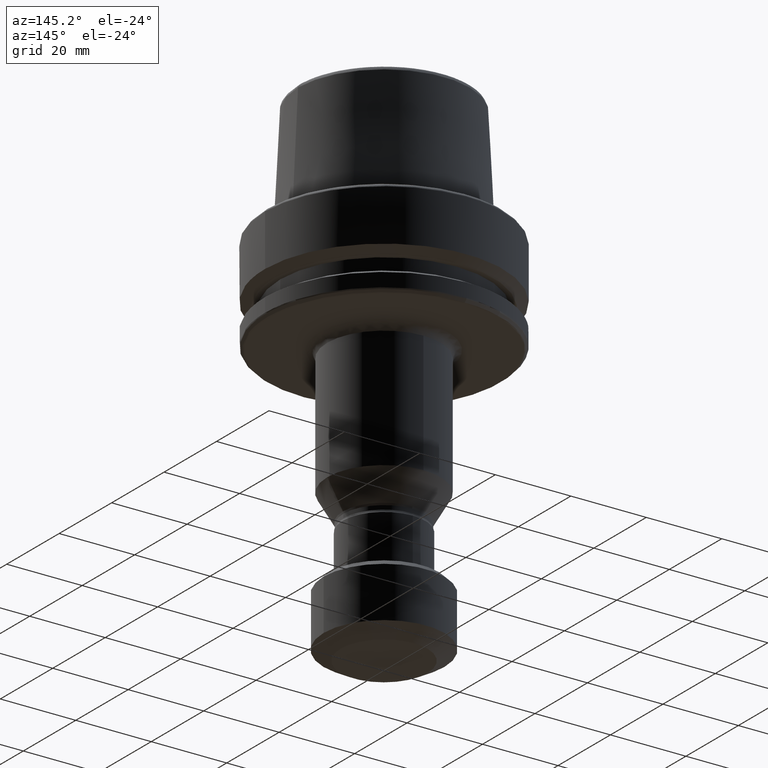
[diagram: clean part render]
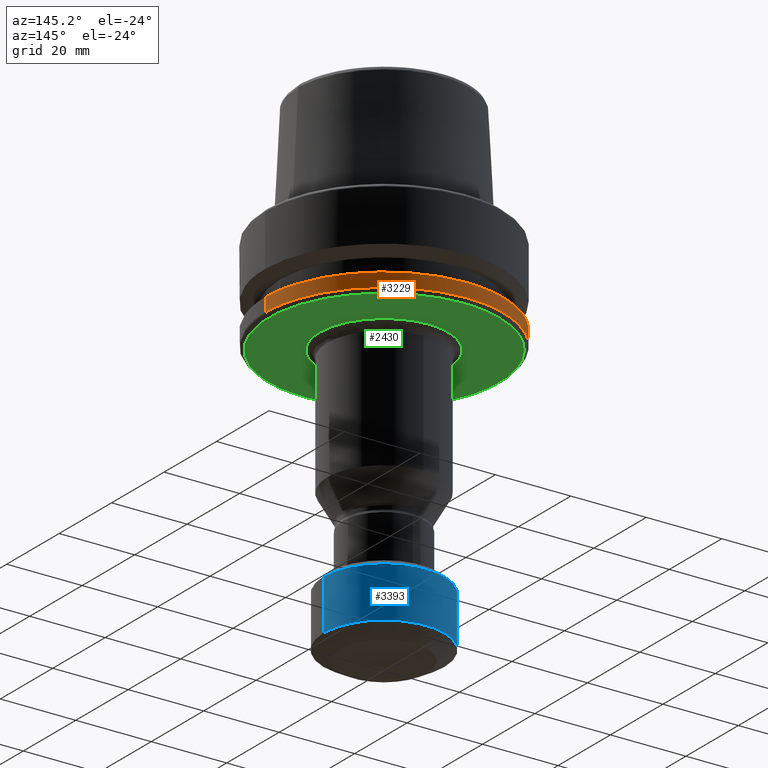
[diagram: same view with three faces highlighted in distinct colors, each labeled with its STEP entity id]
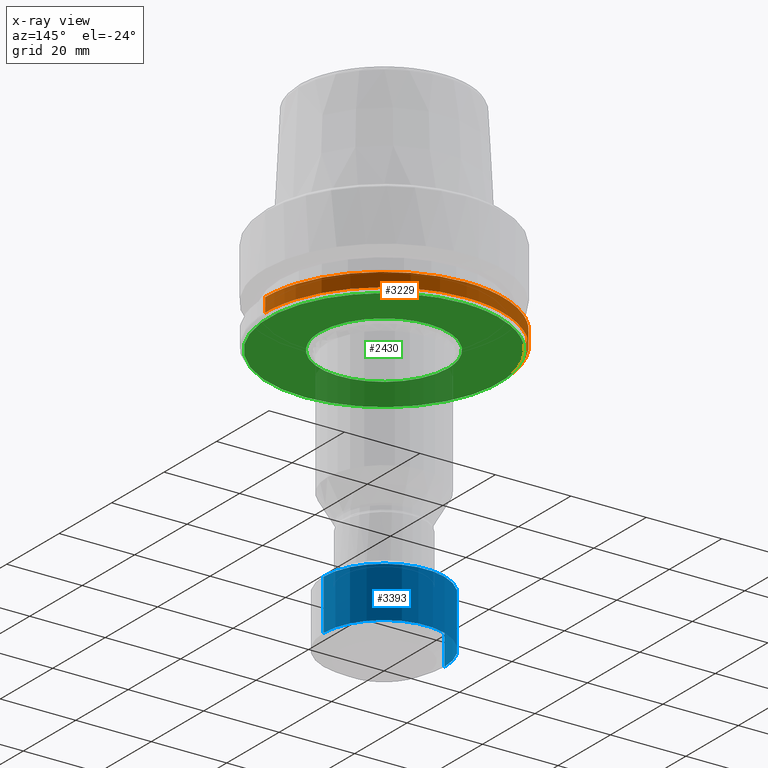
[diagram: x-ray of the same camera — body ghosted, the three highlighted faces saturated]
A machine part, auxiliary view with three faces highlighted in distinct colors.
The next image is the same camera in x-ray (body ghosted, the three faces saturated) — at least one of them is partly hidden behind the body in this view.
Their STEP definitions:

[orange] entity #3229 — the highlighted cylindrical surface (partial cylindrical patch) has radius 31.5 mm, axis along (-0, 0, 1).
#35 = AXIS2_PLACEMENT_3D ( 'NONE', #2597, #4045, #537 ) ;
#70 = CARTESIAN_POINT ( 'NONE',  ( 30.02214815525472600, 9.535230470896225400, -21.37749907499999900 ) ) ;
#132 = VERTEX_POINT ( 'NONE', #70 ) ;
#139 = EDGE_CURVE ( 'NONE', #1020, #3630, #3492, .T. ) ;
#218 = AXIS2_PLACEMENT_3D ( 'NONE', #3806, #1883, #4140 ) ;
#272 = ORIENTED_EDGE ( 'NONE', *, *, #1377, .F. ) ;
#313 = DIRECTION ( 'NONE',  ( -1.000000000000000000, 0.0000000000000000000, 0.0000000000000000000 ) ) ;
#354 = EDGE_CURVE ( 'NONE', #1004, #3685, #510, .T. ) ;
#392 = AXIS2_PLACEMENT_3D ( 'NONE', #3408, #1693, #3247 ) ;
#394 = CIRCLE ( 'NONE', #392, 31.49999999990763700 ) ;
#419 = EDGE_CURVE ( 'NONE', #3623, #737, #394, .T. ) ;
#423 = DIRECTION ( 'NONE',  ( -5.507058653894625200E-017, 0.0000000000000000000, 1.000000000000000000 ) ) ;
#427 = CARTESIAN_POINT ( 'NONE',  ( 0.0000000000000000000, 0.0000000000000000000, -25.03431457500000000 ) ) ;
#510 = CIRCLE ( 'NONE', #3944, 31.50000000000000000 ) ;
#514 = CARTESIAN_POINT ( 'NONE',  ( -30.31739048250313600, 8.550195007128882800, -21.37749907650000100 ) ) ;
#537 = DIRECTION ( 'NONE',  ( -1.000000000000000000, 0.0000000000000000000, 0.0000000000000000000 ) ) ;
#544 = ORIENTED_EDGE ( 'NONE', *, *, #1595, .F. ) ;
#561 = VERTEX_POINT ( 'NONE', #2251 ) ;
#565 = EDGE_CURVE ( 'NONE', #132, #561, #4202, .T. ) ;
#573 = DIRECTION ( 'NONE',  ( -0.0000000000000000000, -0.0000000000000000000, -1.000000000000000000 ) ) ;
#602 = CARTESIAN_POINT ( 'NONE',  ( -30.31739047820233100, 8.550195002828077800, -25.03431457517582000 ) ) ;
#610 = CARTESIAN_POINT ( 'NONE',  ( 31.50000000000000000, 0.0000000000000000000, -25.03431457500000000 ) ) ;
#614 = DIRECTION ( 'NONE',  ( -0.0000000000000000000, -0.0000000000000000000, -1.000000000000000000 ) ) ;
#654 = AXIS2_PLACEMENT_3D ( 'NONE', #817, #3086, #2752 ) ;
#673 = CARTESIAN_POINT ( 'NONE',  ( -24.33618704698481500, 20.00000000000000000, -21.37749907476529300 ) ) ;
#727 = AXIS2_PLACEMENT_3D ( 'NONE', #890, #2590, #1746 ) ;
#737 = VERTEX_POINT ( 'NONE', #1793 ) ;
#743 = EDGE_CURVE ( 'NONE', #3676, #3238, #1378, .T. ) ;
#748 = ORIENTED_EDGE ( 'NONE', *, *, #1968, .F. ) ;
#757 = ORIENTED_EDGE ( 'NONE', *, *, #743, .T. ) ;
#760 = DIRECTION ( 'NONE',  ( -1.776356839400250500E-015, -1.000000000000000000, 0.0000000000000000000 ) ) ;
#817 = CARTESIAN_POINT ( 'NONE',  ( 0.0000000000000000000, 0.0000000000000000000, -25.03431457500000000 ) ) ;
#835 = CARTESIAN_POINT ( 'NONE',  ( -20.00000000000000000, 24.33618704713796200, -21.37749907493846600 ) ) ;
#840 = DIRECTION ( 'NONE',  ( -1.000000000000000000, 0.0000000000000000000, 0.0000000000000000000 ) ) ;
#852 = ORIENTED_EDGE ( 'NONE', *, *, #1864, .F. ) ;
#890 = CARTESIAN_POINT ( 'NONE',  ( 0.0000000000000000000, 0.0000000000000000000, -21.37749907499999900 ) ) ;
#925 = AXIS2_PLACEMENT_3D ( 'NONE', #4212, #2264, #313 ) ;
#981 = FACE_OUTER_BOUND ( 'NONE', #3669, .T. ) ;
#997 = VERTEX_POINT ( 'NONE', #2499 ) ;
#1004 = VERTEX_POINT ( 'NONE', #2155 ) ;
#1020 = VERTEX_POINT ( 'NONE', #3711 ) ;
#1040 = DIRECTION ( 'NONE',  ( 0.0000000000000000000, -1.000000000000000000, 0.0000000000000000000 ) ) ;
#1145 = AXIS2_PLACEMENT_3D ( 'NONE', #3732, #1809, #4071 ) ;
#1174 = CIRCLE ( 'NONE', #1955, 31.50000000000000000 ) ;
#1213 = CARTESIAN_POINT ( 'NONE',  ( 0.0000000000000000000, 0.0000000000000000000, -21.37749907493846600 ) ) ;
#1284 = DIRECTION ( 'NONE',  ( -0.0000000000000000000, -0.0000000000000000000, -1.000000000000000000 ) ) ;
#1329 = CIRCLE ( 'NONE', #727, 31.50000000000000000 ) ;
#1332 = VERTEX_POINT ( 'NONE', #602 ) ;
#1377 = EDGE_CURVE ( 'NONE', #2218, #3238, #1329, .T. ) ;
#1378 = CIRCLE ( 'NONE', #3150, 31.50000000000000000 ) ;
#1412 = DIRECTION ( 'NONE',  ( 0.0000000000000000000, 0.0000000000000000000, 1.000000000000000000 ) ) ;
#1416 = ORIENTED_EDGE ( 'NONE', *, *, #2311, .T. ) ;
#1429 = ORIENTED_EDGE ( 'NONE', *, *, #565, .T. ) ;
#1455 = CARTESIAN_POINT ( 'NONE',  ( 0.0000000000000000000, 0.0000000000000000000, -21.37749907493846600 ) ) ;
#1523 = CIRCLE ( 'NONE', #3379, 31.50000000000000000 ) ;
#1539 = DIRECTION ( 'NONE',  ( -1.000000000000000000, 0.0000000000000000000, 0.0000000000000000000 ) ) ;
#1547 = CARTESIAN_POINT ( 'NONE',  ( 0.0000000000000000000, 0.0000000000000000000, -25.03431457500000000 ) ) ;
#1595 = EDGE_CURVE ( 'NONE', #1332, #3623, #1174, .T. ) ;
#1634 = CYLINDRICAL_SURFACE ( 'NONE', #654, 31.50000000000000000 ) ;
#1637 = EDGE_CURVE ( 'NONE', #1824, #561, #3632, .T. ) ;
#1658 = ORIENTED_EDGE ( 'NONE', *, *, #3769, .F. ) ;
#1685 = CIRCLE ( 'NONE', #925, 31.49999999990763700 ) ;
#1693 = DIRECTION ( 'NONE',  ( -0.0000000000000000000, -0.0000000000000000000, -1.000000000000000000 ) ) ;
#1711 = CARTESIAN_POINT ( 'NONE',  ( -31.50000000000000000, 3.857637417314162700E-015, -25.03431457500000000 ) ) ;
#1722 = ORIENTED_EDGE ( 'NONE', *, *, #139, .F. ) ;
#1746 = DIRECTION ( 'NONE',  ( 0.0000000000000000000, -1.000000000000000000, 0.0000000000000000000 ) ) ;
#1776 = CARTESIAN_POINT ( 'NONE',  ( -24.33618704773857300, 20.00000000000000000, -25.03431457513524800 ) ) ;
#1793 = CARTESIAN_POINT ( 'NONE',  ( -20.00000000000000000, 24.33618704744944200, -25.03431457508257900 ) ) ;
#1809 = DIRECTION ( 'NONE',  ( -0.0000000000000000000, -0.0000000000000000000, -1.000000000000000000 ) ) ;
#1824 = VERTEX_POINT ( 'NONE', #3635 ) ;
#1864 = EDGE_CURVE ( 'NONE', #3630, #997, #1523, .T. ) ;
#1865 = DIRECTION ( 'NONE',  ( -8.881784197001252300E-016, -1.000000000000000000, 0.0000000000000000000 ) ) ;
#1883 = DIRECTION ( 'NONE',  ( -0.0000000000000000000, -0.0000000000000000000, -1.000000000000000000 ) ) ;
#1889 = EDGE_CURVE ( 'NONE', #132, #2768, #2565, .T. ) ;
#1955 = AXIS2_PLACEMENT_3D ( 'NONE', #1547, #3797, #1865 ) ;
#1968 = EDGE_CURVE ( 'NONE', #737, #1020, #3883, .T. ) ;
#2002 = VERTEX_POINT ( 'NONE', #2448 ) ;
#2143 = CARTESIAN_POINT ( 'NONE',  ( 0.0000000000000000000, 0.0000000000000000000, -21.37749907493846600 ) ) ;
#2155 = CARTESIAN_POINT ( 'NONE',  ( -10.00000000001466400, 29.87055406248278500, -21.37749907493846600 ) ) ;
#2176 = ORIENTED_EDGE ( 'NONE', *, *, #1889, .F. ) ;
#2218 = VERTEX_POINT ( 'NONE', #673 ) ;
#2223 = VECTOR ( 'NONE', #423, 1000.000000000000000 ) ;
#2251 = CARTESIAN_POINT ( 'NONE',  ( 31.50000000000000000, 0.0000000000000000000, -21.37749907493846600 ) ) ;
#2264 = DIRECTION ( 'NONE',  ( -0.0000000000000000000, -0.0000000000000000000, -1.000000000000000000 ) ) ;
#2311 = EDGE_CURVE ( 'NONE', #2002, #3676, #3084, .T. ) ;
#2448 = CARTESIAN_POINT ( 'NONE',  ( -31.50000000000000000, 3.857637417314162700E-015, -25.03431457418466300 ) ) ;
#2488 = CIRCLE ( 'NONE', #218, 31.49999999990763700 ) ;
#2493 = CARTESIAN_POINT ( 'NONE',  ( 0.0000000000000000000, 0.0000000000000000000, -21.37749907493846600 ) ) ;
#2499 = CARTESIAN_POINT ( 'NONE',  ( 30.02214815511747000, 9.535230470758975200, -25.03431457463811000 ) ) ;
#2565 = CIRCLE ( 'NONE', #3594, 31.50000000000000000 ) ;
#2590 = DIRECTION ( 'NONE',  ( 0.0000000000000000000, 0.0000000000000000000, 1.000000000000000000 ) ) ;
#2597 = CARTESIAN_POINT ( 'NONE',  ( 0.0000000000000000000, 0.0000000000000000000, -25.03431457418466300 ) ) ;
#2681 = DIRECTION ( 'NONE',  ( -0.0000000000000000000, -0.0000000000000000000, -1.000000000000000000 ) ) ;
#2752 = DIRECTION ( 'NONE',  ( 1.000000000000000000, 0.0000000000000000000, 0.0000000000000000000 ) ) ;
#2768 = VERTEX_POINT ( 'NONE', #3046 ) ;
#2830 = DIRECTION ( 'NONE',  ( -1.000000000000000000, 0.0000000000000000000, 0.0000000000000000000 ) ) ;
#3001 = CIRCLE ( 'NONE', #3212, 31.50000000000000000 ) ;
#3021 = EDGE_CURVE ( 'NONE', #1004, #2768, #3001, .T. ) ;
#3033 = ORIENTED_EDGE ( 'NONE', *, *, #3021, .T. ) ;
#3046 = CARTESIAN_POINT ( 'NONE',  ( 0.0000000000000000000, 31.50000000000000000, -21.37749907493846600 ) ) ;
#3053 = CIRCLE ( 'NONE', #3449, 31.50000000000000000 ) ;
#3084 = LINE ( 'NONE', #1711, #2223 ) ;
#3086 = DIRECTION ( 'NONE',  ( -5.507058653894625200E-017, 0.0000000000000000000, 1.000000000000000000 ) ) ;
#3150 = AXIS2_PLACEMENT_3D ( 'NONE', #1455, #614, #3788 ) ;
#3165 = ORIENTED_EDGE ( 'NONE', *, *, #1637, .F. ) ;
#3206 = DIRECTION ( 'NONE',  ( -5.507058653894625200E-017, 0.0000000000000000000, 1.000000000000000000 ) ) ;
#3212 = AXIS2_PLACEMENT_3D ( 'NONE', #2493, #573, #2830 ) ;
#3229 = ADVANCED_FACE ( 'NONE', ( #981 ), #1634, .T. ) ;
#3238 = VERTEX_POINT ( 'NONE', #514 ) ;
#3247 = DIRECTION ( 'NONE',  ( -1.000000000000000000, 0.0000000000000000000, 0.0000000000000000000 ) ) ;
#3254 = EDGE_CURVE ( 'NONE', #2002, #1332, #2488, .T. ) ;
#3343 = CARTESIAN_POINT ( 'NONE',  ( 0.0000000000000000000, 0.0000000000000000000, -21.37749907499999900 ) ) ;
#3350 = CARTESIAN_POINT ( 'NONE',  ( 0.0000000000000000000, 0.0000000000000000000, -21.37749907499999900 ) ) ;
#3379 = AXIS2_PLACEMENT_3D ( 'NONE', #427, #2681, #760 ) ;
#3382 = ORIENTED_EDGE ( 'NONE', *, *, #4190, .T. ) ;
#3408 = CARTESIAN_POINT ( 'NONE',  ( 0.0000000000000000000, 0.0000000000000000000, -25.03431457418466300 ) ) ;
#3411 = CARTESIAN_POINT ( 'NONE',  ( -31.50000000000000000, 3.857637417314162700E-015, -21.37749907493846600 ) ) ;
#3430 = AXIS2_PLACEMENT_3D ( 'NONE', #2143, #1284, #840 ) ;
#3449 = AXIS2_PLACEMENT_3D ( 'NONE', #1213, #3463, #1539 ) ;
#3463 = DIRECTION ( 'NONE',  ( -0.0000000000000000000, -0.0000000000000000000, -1.000000000000000000 ) ) ;
#3489 = ORIENTED_EDGE ( 'NONE', *, *, #419, .F. ) ;
#3492 = CIRCLE ( 'NONE', #35, 31.49999999990763700 ) ;
#3576 = ORIENTED_EDGE ( 'NONE', *, *, #354, .F. ) ;
#3594 = AXIS2_PLACEMENT_3D ( 'NONE', #3343, #1412, #3654 ) ;
#3623 = VERTEX_POINT ( 'NONE', #1776 ) ;
#3630 = VERTEX_POINT ( 'NONE', #3697 ) ;
#3632 = LINE ( 'NONE', #610, #3736 ) ;
#3635 = CARTESIAN_POINT ( 'NONE',  ( 31.50000000000000000, 0.0000000000000000000, -25.03431457418466300 ) ) ;
#3654 = DIRECTION ( 'NONE',  ( 0.0000000000000000000, -1.000000000000000000, 0.0000000000000000000 ) ) ;
#3657 = ORIENTED_EDGE ( 'NONE', *, *, #3254, .F. ) ;
#3669 = EDGE_LOOP ( 'NONE', ( #3657, #1416, #757, #272, #3382, #3576, #3033, #2176, #1429, #3165, #1658, #852, #1722, #748, #3489, #544 ) ) ;
#3676 = VERTEX_POINT ( 'NONE', #3411 ) ;
#3685 = VERTEX_POINT ( 'NONE', #835 ) ;
#3697 = CARTESIAN_POINT ( 'NONE',  ( 8.829720859639318700E-015, 31.49999999990763700, -25.03431457418466300 ) ) ;
#3711 = CARTESIAN_POINT ( 'NONE',  ( -10.00000000000000000, 29.87055406239029100, -25.03431457418466300 ) ) ;
#3732 = CARTESIAN_POINT ( 'NONE',  ( 0.0000000000000000000, 0.0000000000000000000, -25.03431457500000000 ) ) ;
#3736 = VECTOR ( 'NONE', #3206, 1000.000000000000000 ) ;
#3769 = EDGE_CURVE ( 'NONE', #997, #1824, #1685, .T. ) ;
#3788 = DIRECTION ( 'NONE',  ( -1.000000000000000000, 0.0000000000000000000, 0.0000000000000000000 ) ) ;
#3797 = DIRECTION ( 'NONE',  ( -0.0000000000000000000, -0.0000000000000000000, -1.000000000000000000 ) ) ;
#3806 = CARTESIAN_POINT ( 'NONE',  ( 0.0000000000000000000, 0.0000000000000000000, -25.03431457418466300 ) ) ;
#3883 = CIRCLE ( 'NONE', #1145, 31.50000000000000000 ) ;
#3921 = DIRECTION ( 'NONE',  ( 0.0000000000000000000, 0.0000000000000000000, 1.000000000000000000 ) ) ;
#3944 = AXIS2_PLACEMENT_3D ( 'NONE', #3350, #3921, #1040 ) ;
#4045 = DIRECTION ( 'NONE',  ( -0.0000000000000000000, -0.0000000000000000000, -1.000000000000000000 ) ) ;
#4071 = DIRECTION ( 'NONE',  ( 0.0000000000000000000, -1.000000000000000000, 0.0000000000000000000 ) ) ;
#4140 = DIRECTION ( 'NONE',  ( -1.000000000000000000, 0.0000000000000000000, 0.0000000000000000000 ) ) ;
#4190 = EDGE_CURVE ( 'NONE', #2218, #3685, #3053, .T. ) ;
#4202 = CIRCLE ( 'NONE', #3430, 31.50000000000000000 ) ;
#4212 = CARTESIAN_POINT ( 'NONE',  ( 0.0000000000000000000, 0.0000000000000000000, -25.03431457418466300 ) ) ;

[blue] entity #3393 — the highlighted cylindrical surface (partial cylindrical patch) has radius 16 mm, axis along (0, -0, 1).
#316 = DIRECTION ( 'NONE',  ( 1.000000000000000000, 0.0000000000000000000, 0.0000000000000000000 ) ) ;
#325 = CARTESIAN_POINT ( 'NONE',  ( -16.00000000000000000, 0.0000000000000000000, -84.00000000000000000 ) ) ;
#432 = CARTESIAN_POINT ( 'NONE',  ( -16.00000000000000000, 1.959434878635765100E-015, -97.40192378900003700 ) ) ;
#436 = EDGE_CURVE ( 'NONE', #2067, #3735, #2781, .T. ) ;
#580 = CYLINDRICAL_SURFACE ( 'NONE', #3671, 16.00000000000000000 ) ;
#623 = AXIS2_PLACEMENT_3D ( 'NONE', #2627, #3901, #4185 ) ;
#663 = CARTESIAN_POINT ( 'NONE',  ( 0.0000000000000000000, 0.0000000000000000000, -97.40192378900003700 ) ) ;
#704 = AXIS2_PLACEMENT_3D ( 'NONE', #2747, #815, #3076 ) ;
#815 = DIRECTION ( 'NONE',  ( 0.0000000000000000000, 0.0000000000000000000, 1.000000000000000000 ) ) ;
#870 = CARTESIAN_POINT ( 'NONE',  ( 16.00000000000000000, 0.0000000000000000000, -97.40192378900003700 ) ) ;
#914 = VERTEX_POINT ( 'NONE', #3210 ) ;
#936 = EDGE_CURVE ( 'NONE', #2067, #914, #1833, .T. ) ;
#1262 = ORIENTED_EDGE ( 'NONE', *, *, #1919, .F. ) ;
#1833 = LINE ( 'NONE', #2815, #1936 ) ;
#1919 = EDGE_CURVE ( 'NONE', #914, #3787, #2275, .T. ) ;
#1936 = VECTOR ( 'NONE', #3817, 1000.000000000000000 ) ;
#2067 = VERTEX_POINT ( 'NONE', #870 ) ;
#2078 = EDGE_LOOP ( 'NONE', ( #3791, #2562, #1262, #3378 ) ) ;
#2275 = CIRCLE ( 'NONE', #704, 16.00000000000000000 ) ;
#2319 = LINE ( 'NONE', #432, #3931 ) ;
#2359 = EDGE_CURVE ( 'NONE', #3735, #3787, #2319, .T. ) ;
#2562 = ORIENTED_EDGE ( 'NONE', *, *, #2359, .T. ) ;
#2627 = CARTESIAN_POINT ( 'NONE',  ( 0.0000000000000000000, 0.0000000000000000000, -97.40192378900003700 ) ) ;
#2690 = DIRECTION ( 'NONE',  ( 0.0000000000000000000, -0.0000000000000000000, 1.000000000000000000 ) ) ;
#2747 = CARTESIAN_POINT ( 'NONE',  ( 0.0000000000000000000, 0.0000000000000000000, -84.00000000000000000 ) ) ;
#2781 = CIRCLE ( 'NONE', #623, 16.00000000000000000 ) ;
#2815 = CARTESIAN_POINT ( 'NONE',  ( 16.00000000000000000, 0.0000000000000000000, -97.40192378900003700 ) ) ;
#3076 = DIRECTION ( 'NONE',  ( 1.000000000000000000, 0.0000000000000000000, 0.0000000000000000000 ) ) ;
#3210 = CARTESIAN_POINT ( 'NONE',  ( 16.00000000000000000, 1.959434878635765100E-015, -84.00000000000000000 ) ) ;
#3378 = ORIENTED_EDGE ( 'NONE', *, *, #936, .F. ) ;
#3393 = ADVANCED_FACE ( 'NONE', ( #4012 ), #580, .T. ) ;
#3671 = AXIS2_PLACEMENT_3D ( 'NONE', #663, #4217, #316 ) ;
#3735 = VERTEX_POINT ( 'NONE', #3759 ) ;
#3759 = CARTESIAN_POINT ( 'NONE',  ( -16.00000000000000000, 1.959434878635765100E-015, -97.40192378900003700 ) ) ;
#3787 = VERTEX_POINT ( 'NONE', #325 ) ;
#3791 = ORIENTED_EDGE ( 'NONE', *, *, #436, .T. ) ;
#3817 = DIRECTION ( 'NONE',  ( 0.0000000000000000000, -0.0000000000000000000, 1.000000000000000000 ) ) ;
#3901 = DIRECTION ( 'NONE',  ( 0.0000000000000000000, 0.0000000000000000000, 1.000000000000000000 ) ) ;
#3931 = VECTOR ( 'NONE', #2690, 1000.000000000000000 ) ;
#4012 = FACE_OUTER_BOUND ( 'NONE', #2078, .T. ) ;
#4185 = DIRECTION ( 'NONE',  ( 1.000000000000000000, 0.0000000000000000000, 0.0000000000000000000 ) ) ;
#4217 = DIRECTION ( 'NONE',  ( 0.0000000000000000000, -0.0000000000000000000, 1.000000000000000000 ) ) ;

[green] entity #2430 — the highlighted planar face has unit normal (0, 0, 1).
#9 = B_SPLINE_CURVE_WITH_KNOTS ( 'NONE', 3,
 ( #4025, #3386, #164, #2422, #496, #2753, #818, #3087, #1151, #3402, #1484, #3719, #1801, #4061, #2129, #177, #2436, #515, #2766, #831, #3107, #1171, #3415, #1500, #3739, #1814, #4077, #2144, #191, #2451, #532, #2788, #841, #3122, #1190, #3429, #1509, #3750, #1832, #4088, #2158, #207, #2465, #541, #2800, #862, #3132 ),
 .UNSPECIFIED., .F., .F.,
 ( 4, 2, 2, 1, 1, 1, 2, 2, 1, 1, 2, 2, 1, 1, 1, 2, 2, 1, 1, 1, 1, 2, 2, 1, 1, 1, 1, 2, 2, 1, 1, 1, 4 ),
 ( 0.6627094863868866500, 0.6837901434877060600, 0.6890603077629108300, 0.6943304720381156000, 0.7048708005885252500, 0.7154111291389347900, 0.7180462112765372300, 0.7206812934141396700, 0.7259514576893445500, 0.7470321147901639600, 0.7496671969277665100, 0.7523022790653689500, 0.7575724433405738300, 0.7681127718909835900, 0.7891934289918031100, 0.8102740860926226400, 0.8129091682302250800, 0.8155442503678275200, 0.8208144146430325100, 0.8313547431934424900, 0.8735160573950824200, 0.8748335984638837500, 0.8761511395326849700, 0.8787862216702875300, 0.8840563859454924100, 0.8945967144959022800, 0.9156773715967219100, 0.9367580286975416600, 0.9393931108351441000, 0.9420281929727465400, 0.9472983572479514200, 0.9578386857983611800, 1.000000000000000000 ),
 .UNSPECIFIED. ) ;
#38 = ORIENTED_EDGE ( 'NONE', *, *, #1168, .T. ) ;
#50 = CARTESIAN_POINT ( 'NONE',  ( -23.07258894835721500, 19.99999987730086200, -25.99999999993078200 ) ) ;
#63 = CARTESIAN_POINT ( 'NONE',  ( -16.85267949656106300, -2.233228895894505200, -26.00000000000000700 ) ) ;
#68 = CARTESIAN_POINT ( 'NONE',  ( -29.61798612400001200, -30.90828840100000000, -26.00000000000000400 ) ) ;
#73 = CARTESIAN_POINT ( 'NONE',  ( -15.63411984570965400, -6.684155819591292200, -26.00000000000001100 ) ) ;
#87 = CARTESIAN_POINT ( 'NONE',  ( 0.0000000000000000000, 16.99999999918118500, -25.99999999993078200 ) ) ;
#93 = CARTESIAN_POINT ( 'NONE',  ( -13.64038051994603900, -10.14594867192172400, -25.99999999999999600 ) ) ;
#103 = CARTESIAN_POINT ( 'NONE',  ( -4.305311938405161200, 16.44734480730304700, -25.99999999999999600 ) ) ;
#105 = CARTESIAN_POINT ( 'NONE',  ( -11.37750905893330600, -12.63179970911781600, -26.00000000000001100 ) ) ;
#117 = CARTESIAN_POINT ( 'NONE',  ( -9.309718019149505300, 14.24983302118902300, -25.99999999999998900 ) ) ;
#120 = CARTESIAN_POINT ( 'NONE',  ( -8.503104457427751200, -14.72225190065370600, -25.99999999999999600 ) ) ;
#126 = CARTESIAN_POINT ( 'NONE',  ( 16.98119468944758400, 0.9430413942595692300, -26.00000000000001100 ) ) ;
#133 = CARTESIAN_POINT ( 'NONE',  ( -4.768990813608756000, -16.31899148969116800, -26.00000000000001100 ) ) ;
#141 = CARTESIAN_POINT ( 'NONE',  ( 16.34598719453096600, 4.670107737737695600, -26.00000000000000000 ) ) ;
#154 = CARTESIAN_POINT ( 'NONE',  ( 0.0000000000000000000, 0.0000000000000000000, -25.99999999993078200 ) ) ;
#153 = CARTESIAN_POINT ( 'NONE',  ( 1.412797614018612000, -16.94213636882001600, -26.00000000000000700 ) ) ;
#159 = CARTESIAN_POINT ( 'NONE',  ( 15.04449788418743800, 7.934399767652733400, -26.00000000000000400 ) ) ;
#164 = CARTESIAN_POINT ( 'NONE',  ( -10.68107856557443300, 13.23244501292038700, -26.00000000000000700 ) ) ;
#166 = CARTESIAN_POINT ( 'NONE',  ( 5.996934553090847300, -15.90736267003421400, -26.00000000000000400 ) ) ;
#174 = CARTESIAN_POINT ( 'NONE',  ( 12.58346260199642500, 11.43056078559619600, -26.00000000000000000 ) ) ;
#177 = CARTESIAN_POINT ( 'NONE',  ( -13.55938012322325600, 10.25405060984276600, -25.99999999999998900 ) ) ;
#178 = CARTESIAN_POINT ( 'NONE',  ( 9.544236589368733100, -14.06801972888158400, -26.00000000000000000 ) ) ;
#185 = CARTESIAN_POINT ( 'NONE',  ( 9.906660738073371800, 13.81553632623238500, -25.99999999999999600 ) ) ;
#191 = CARTESIAN_POINT ( 'NONE',  ( -15.84170417684945100, 6.212737724191825400, -26.00000000000000000 ) ) ;
#196 = CARTESIAN_POINT ( 'NONE',  ( 12.30322819970791700, -11.73203573965302300, -26.00000000000000400 ) ) ;
#201 = B_SPLINE_CURVE_WITH_KNOTS ( 'NONE', 3,
 ( #4004, #2079, #126, #2386, #459, #2709, #783, #3050, #1114, #3363, #1443, #3686, #1762, #4020, #2097, #141, #2397, #476, #2728, #796, #3064, #1128, #3380, #1459, #3699, #1778, #4033, #2108, #159, #2414, #490, #2745, #814, #3074, #1146, #3398, #1474, #3714, #1796, #4056, #2122, #174, #2429, #507, #2763, #826, #3104, #1164, #3412, #1496, #3731, #1808, #4070, #2141, #185, #2447, #527, #2778, #837, #3116, #1185, #3424, #1507, #3747, #1826, #4084, #2152, #203, #2460, #538, #2797, #853, #3128, #1194, #3445, #1515, #3760, #1839, #4098, #2166, #216, #2477, #551, #2809, #869 ),
 .UNSPECIFIED., .F., .F.,
 ( 4, 1, 1, 1, 1, 1, 2, 2, 1, 1, 1, 1, 1, 2, 2, 1, 1, 1, 1, 1, 2, 2, 1, 1, 1, 1, 1, 2, 2, 1, 1, 1, 2, 2, 1, 1, 1, 2, 2, 1, 1, 1, 2, 2, 1, 1, 1, 2, 2, 1, 1, 2, 2, 1, 1, 2, 2, 1, 2, 2, 4 ),
 ( 0.0000000000000000000, 0.03125000000000196400, 0.04687500000000294200, 0.05468750000000344900, 0.05859375000000370500, 0.06054687500000380900, 0.06152343750000386500, 0.06250000000000391400, 0.09375000000000557900, 0.1093750000000064300, 0.1171875000000068600, 0.1210937500000070500, 0.1230468750000071900, 0.1240234375000072300, 0.1250000000000072400, 0.1562500000000079400, 0.1718750000000083000, 0.1796875000000084700, 0.1835937500000085500, 0.1855468750000085500, 0.1865234375000085800, 0.1875000000000086000, 0.2187500000000096900, 0.2343750000000101900, 0.2421875000000103800, 0.2460937500000104900, 0.2480468750000105200, 0.2490234375000104400, 0.2500000000000103300, 0.2656250000000086600, 0.2734375000000077700, 0.2773437500000073300, 0.2792968750000071600, 0.2812500000000069900, 0.2968750000000060500, 0.3046875000000056100, 0.3085937500000053800, 0.3105468750000053300, 0.3125000000000052200, 0.3281250000000043900, 0.3359375000000040000, 0.3398437500000037700, 0.3417968750000036600, 0.3437500000000035500, 0.3593750000000028300, 0.3671875000000025000, 0.3710937500000022800, 0.3730468750000021600, 0.3750000000000020500, 0.3906250000000016700, 0.3984375000000014400, 0.4023437500000012800, 0.4062500000000011700, 0.4218750000000008300, 0.4296875000000006700, 0.4335937500000006700, 0.4375000000000006100, 0.4531250000000005000, 0.4609375000000004400, 0.4687500000000003900, 0.5000000000000000000 ),
 .UNSPECIFIED. ) ;
#203 = CARTESIAN_POINT ( 'NONE',  ( 6.706845463133765500, 15.62269563764625800, -25.99999999999999600 ) ) ;
#207 = CARTESIAN_POINT ( 'NONE',  ( -16.86263371792161400, 2.157018673623452000, -26.00000000000000700 ) ) ;
#209 = CARTESIAN_POINT ( 'NONE',  ( 14.37662306356607700, -9.100880302235994500, -26.00000000000000700 ) ) ;
#216 = CARTESIAN_POINT ( 'NONE',  ( 2.465069421408025500, 16.82124625226045500, -26.00000000000000400 ) ) ;
#221 = CARTESIAN_POINT ( 'NONE',  ( -29.26865842724367200, 8.700000006397418800, -26.00000000002898300 ) ) ;
#223 = CARTESIAN_POINT ( 'NONE',  ( 16.29018721745281100, -4.861209404322666600, -26.00000000000000700 ) ) ;
#226 = CARTESIAN_POINT ( 'NONE',  ( 28.95262262480923400, 9.699999949344045200, -25.99999999993078200 ) ) ;
#230 = CARTESIAN_POINT ( 'NONE',  ( -19.99999999187414100, 23.07258909541634800, -25.99999999993078200 ) ) ;
#234 = CARTESIAN_POINT ( 'NONE',  ( 16.94985250655823700, -1.507938577823947400, -26.00000000000000400 ) ) ;
#236 = DIRECTION ( 'NONE',  ( -1.000000000000000000, 0.0000000000000000000, 0.0000000000000000000 ) ) ;
#289 = ORIENTED_EDGE ( 'NONE', *, *, #1101, .F. ) ;
#388 = CARTESIAN_POINT ( 'NONE',  ( -16.79282208412682900, -2.680358328439925100, -26.00000000000000400 ) ) ;
#399 = DIRECTION ( 'NONE',  ( 0.0000000000000000000, 0.0000000000000000000, 1.000000000000000000 ) ) ;
#404 = CARTESIAN_POINT ( 'NONE',  ( -15.37233848124172300, -7.259313674646652900, -26.00000000000001400 ) ) ;
#420 = CARTESIAN_POINT ( 'NONE',  ( -13.61089059393375700, -10.18547828135536900, -26.00000000000000000 ) ) ;
#430 = CARTESIAN_POINT ( 'NONE',  ( -4.956595157487912600, 16.26176998992039200, -26.00000000000001400 ) ) ;
#431 = CARTESIAN_POINT ( 'NONE',  ( -11.23533064813407200, -12.75808495777112000, -26.00000000000000000 ) ) ;
#452 = DIRECTION ( 'NONE',  ( -0.0000000000000000000, -0.0000000000000000000, -1.000000000000000000 ) ) ;
#451 = CARTESIAN_POINT ( 'NONE',  ( -8.144607597327405900, -14.92203046599653300, -25.99999999999999600 ) ) ;
#459 = CARTESIAN_POINT ( 'NONE',  ( 16.89069413635457900, 1.928758707260672400, -26.00000000000000000 ) ) ;
#469 = CARTESIAN_POINT ( 'NONE',  ( -4.352198495229606200, -16.43367810599129400, -26.00000000000001100 ) ) ;
#476 = CARTESIAN_POINT ( 'NONE',  ( 16.32747109011552000, 4.734326009059961900, -26.00000000000001100 ) ) ;
#486 = DIRECTION ( 'NONE',  ( -1.000000000000000000, 0.0000000000000000000, 0.0000000000000000000 ) ) ;
#485 = CARTESIAN_POINT ( 'NONE',  ( 1.942477690900758400, -16.88956572208821100, -26.00000000000000700 ) ) ;
#490 = CARTESIAN_POINT ( 'NONE',  ( 14.14768249948287800, 9.432579470372379800, -26.00000000000000000 ) ) ;
#496 = CARTESIAN_POINT ( 'NONE',  ( -11.16965281935888800, 12.81598028154967200, -26.00000000000000400 ) ) ;
#497 = ORIENTED_EDGE ( 'NONE', *, *, #2550, .F. ) ;
#499 = CARTESIAN_POINT ( 'NONE',  ( 6.473660463896657700, -15.72279917330906700, -26.00000000000000000 ) ) ;
#507 = CARTESIAN_POINT ( 'NONE',  ( 12.51104193519409500, 11.50978870937619500, -25.99999999999999600 ) ) ;
#515 = CARTESIAN_POINT ( 'NONE',  ( -13.64416727709530800, 10.14095022058110200, -26.00000000000000700 ) ) ;
#520 = CARTESIAN_POINT ( 'NONE',  ( 9.647156264524321400, -13.99763926153740800, -25.99999999999999600 ) ) ;
#527 = CARTESIAN_POINT ( 'NONE',  ( 9.744815026550103500, 13.92982747403316400, -26.00000000000000400 ) ) ;
#531 = CARTESIAN_POINT ( 'NONE',  ( 17.40962795903931600, -44.15360565845998800, -25.99999999982696200 ) ) ;
#532 = CARTESIAN_POINT ( 'NONE',  ( -16.31213586035956100, 4.786920896484876800, -26.00000000000000000 ) ) ;
#534 = CARTESIAN_POINT ( 'NONE',  ( 12.43350442534210400, -11.59350497358634900, -26.00000000000000400 ) ) ;
#538 = CARTESIAN_POINT ( 'NONE',  ( 6.315966820651838500, 15.78339758797606900, -26.00000000000000400 ) ) ;
#541 = CARTESIAN_POINT ( 'NONE',  ( -16.90087520699388400, 1.841074134724779700, -26.00000000000000400 ) ) ;
#542 = CARTESIAN_POINT ( 'NONE',  ( 15.06912652247156400, -7.871101424175736700, -26.00000000000000000 ) ) ;
#551 = CARTESIAN_POINT ( 'NONE',  ( 1.414276455576608500, 16.95587849739214200, -26.00000000000000700 ) ) ;
#554 = VERTEX_POINT ( 'NONE', #230 ) ;
#559 = CARTESIAN_POINT ( 'NONE',  ( 16.31153785267413500, -4.788938794873814700, -26.00000000000001100 ) ) ;
#572 = CARTESIAN_POINT ( 'NONE',  ( 16.99999999938483700, 3.727308970728297600E-009, -26.00000000000000000 ) ) ;
#626 = CARTESIAN_POINT ( 'NONE',  ( -17.00000000079964500, 3.727308392487138600E-009, -26.00000000000000700 ) ) ;
#670 = EDGE_CURVE ( 'NONE', #934, #2438, #2206, .T. ) ;
#699 = VERTEX_POINT ( 'NONE', #3471 ) ;
#721 = CARTESIAN_POINT ( 'NONE',  ( -16.51582972314569600, -4.038375910772099800, -26.00000000000000400 ) ) ;
#734 = CARTESIAN_POINT ( 'NONE',  ( -15.30722970341375900, -7.395195222388704100, -25.99999999999999300 ) ) ;
#744 = CARTESIAN_POINT ( 'NONE',  ( -13.77982522530426800, 27.54023265865934500, -25.99999999982696500 ) ) ;
#746 = CARTESIAN_POINT ( 'NONE',  ( -0.9218667927968033900, 16.98122154889378900, -26.00000000000000700 ) ) ;
#750 = CARTESIAN_POINT ( 'NONE',  ( -13.15571908856997600, -10.77382122254823900, -26.00000000000000400 ) ) ;
#765 = CARTESIAN_POINT ( 'NONE',  ( -5.281304507996358300, 16.15921488310710400, -25.99999999999999600 ) ) ;
#766 = CARTESIAN_POINT ( 'NONE',  ( -10.93936968809892500, -13.01656310182647900, -26.00000000000001400 ) ) ;
#779 = CARTESIAN_POINT ( 'NONE',  ( -8.037293543373232700, -14.98010865066858000, -26.00000000000000400 ) ) ;
#783 = CARTESIAN_POINT ( 'NONE',  ( 16.86035588276091700, 2.174700083006790000, -26.00000000000000000 ) ) ;
#791 = CARTESIAN_POINT ( 'NONE',  ( -3.844185893618596400, -16.56339290346947400, -26.00000000000000700 ) ) ;
#796 = CARTESIAN_POINT ( 'NONE',  ( 16.18502585690640000, 5.222820342672879900, -26.00000000000000400 ) ) ;
#809 = CARTESIAN_POINT ( 'NONE',  ( 2.985105393558083800, -16.74234157933393900, -26.00000000000000700 ) ) ;
#814 = CARTESIAN_POINT ( 'NONE',  ( 13.74050939487174000, 10.01032153358939600, -25.99999999999999600 ) ) ;
#818 = CARTESIAN_POINT ( 'NONE',  ( -11.55221745341750900, 12.47479230711197800, -25.99999999999999600 ) ) ;
#820 = CARTESIAN_POINT ( 'NONE',  ( 7.473723384070860100, -15.27068649384293400, -26.00000000000000400 ) ) ;
#826 = CARTESIAN_POINT ( 'NONE',  ( 11.96070595912797800, 12.08734611338777200, -25.99999999999999300 ) ) ;
#829 = CIRCLE ( 'NONE', #4156, 30.53431439989917400 ) ;
#831 = CARTESIAN_POINT ( 'NONE',  ( -13.88554501254686500, 9.810763200967269200, -25.99999999999999600 ) ) ;
#832 = CARTESIAN_POINT ( 'NONE',  ( 10.32283768818481000, -13.51352612422323100, -26.00000000000000700 ) ) ;
#837 = CARTESIAN_POINT ( 'NONE',  ( 9.409810366555568400, 14.16204788078845100, -26.00000000000001100 ) ) ;
#841 = CARTESIAN_POINT ( 'NONE',  ( -16.32816698985044800, 4.731946725595718400, -26.00000000000000400 ) ) ;
#843 = CARTESIAN_POINT ( 'NONE',  ( 12.68236215214160000, -11.32441305219129800, -26.00000000000001100 ) ) ;
#853 = CARTESIAN_POINT ( 'NONE',  ( 5.836110861910897900, 15.97059199068492000, -26.00000000000000700 ) ) ;
#862 = CARTESIAN_POINT ( 'NONE',  ( -16.99999999918118500, 0.5097985485151542700, -25.99999999999999600 ) ) ;
#864 = CARTESIAN_POINT ( 'NONE',  ( 15.22884932485854700, -7.555404176035247100, -26.00000000000000700 ) ) ;
#869 = CARTESIAN_POINT ( 'NONE',  ( 0.0000000000000000000, 16.99999999918118500, -25.99999999993078200 ) ) ;
#873 = CARTESIAN_POINT ( 'NONE',  ( 16.43971310594486100, -4.349601046925641900, -26.00000000000000700 ) ) ;
#916 = CARTESIAN_POINT ( 'NONE',  ( -29.26865826585492100, -8.699999953361631500, -25.99999999993078200 ) ) ;
#934 = VERTEX_POINT ( 'NONE', #1109 ) ;
#942 = CARTESIAN_POINT ( 'NONE',  ( -23.07258894835721500, 19.99999987730086200, -25.99999999993078200 ) ) ;
#960 = ORIENTED_EDGE ( 'NONE', *, *, #2750, .T. ) ;
#993 = CARTESIAN_POINT ( 'NONE',  ( 16.99999999938483700, 3.727308970728297600E-009, -26.00000000000000000 ) ) ;
#1046 = EDGE_CURVE ( 'NONE', #2231, #1104, #2159, .T. ) ;
#1050 = CARTESIAN_POINT ( 'NONE',  ( -16.37154339561269700, -4.580126690245550400, -26.00000000000000700 ) ) ;
#1069 = CARTESIAN_POINT ( 'NONE',  ( -15.28828640665184600, -7.434283152959003400, -26.00000000000001800 ) ) ;
#1077 = CARTESIAN_POINT ( 'NONE',  ( -1.837347293900488500, 16.90197789790998000, -26.00000000000000400 ) ) ;
#1079 = CARTESIAN_POINT ( 'NONE',  ( -12.65665169108091500, -11.34981727634849200, -26.00000000000000700 ) ) ;
#1091 = CARTESIAN_POINT ( 'NONE',  ( -6.427426899788229300, 15.74907252745480200, -26.00000000000000400 ) ) ;
#1092 = CARTESIAN_POINT ( 'NONE',  ( -10.13119657468715600, -13.65295057946183400, -26.00000000000001100 ) ) ;
#1101 = EDGE_CURVE ( 'NONE', #699, #554, #4144, .T. ) ;
#1104 = VERTEX_POINT ( 'NONE', #221 ) ;
#1105 = CARTESIAN_POINT ( 'NONE',  ( -7.247701707760756800, -15.38413925715594200, -26.00000000000000700 ) ) ;
#1109 = CARTESIAN_POINT ( 'NONE',  ( -29.26865826585492100, -8.699999953361631500, -25.99999999993078200 ) ) ;
#1110 = ORIENTED_EDGE ( 'NONE', *, *, #1436, .T. ) ;
#1114 = CARTESIAN_POINT ( 'NONE',  ( 16.85267949656107000, 2.233228895894510100, -26.00000000000001100 ) ) ;
#1124 = CARTESIAN_POINT ( 'NONE',  ( -2.811825642755234600, -16.76678586512798600, -26.00000000000000400 ) ) ;
#1128 = CARTESIAN_POINT ( 'NONE',  ( 15.63411984569950200, 6.684155819616572500, -26.00000000000000000 ) ) ;
#1135 = CARTESIAN_POINT ( 'NONE',  ( 3.843225236679012700, -16.56011569873480100, -25.99999999999999600 ) ) ;
#1146 = CARTESIAN_POINT ( 'NONE',  ( 13.64038051994436000, 10.14594867192469100, -26.00000000000000700 ) ) ;
#1151 = CARTESIAN_POINT ( 'NONE',  ( -12.24691289727987200, 11.79272412780590600, -26.00000000000000000 ) ) ;
#1154 = CARTESIAN_POINT ( 'NONE',  ( 7.850344379276936700, -15.07891996055106400, -26.00000000000000400 ) ) ;
#1164 = CARTESIAN_POINT ( 'NONE',  ( 11.37750905893346600, 12.63179970911755800, -25.99999999999999600 ) ) ;
#1168 = EDGE_CURVE ( 'NONE', #2922, #2438, #3149, .T. ) ;
#1171 = CARTESIAN_POINT ( 'NONE',  ( -14.72512974136147600, 8.518881665364501600, -26.00000000000000000 ) ) ;
#1175 = CARTESIAN_POINT ( 'NONE',  ( 10.96779659966288600, -12.98916458340888300, -26.00000000000000400 ) ) ;
#1185 = CARTESIAN_POINT ( 'NONE',  ( 8.503104457416428700, 14.72225190066051900, -26.00000000000000400 ) ) ;
#1187 = VERTEX_POINT ( 'NONE', #2760 ) ;
#1190 = CARTESIAN_POINT ( 'NONE',  ( -16.37281723407485100, 4.576051824984089600, -26.00000000000000400 ) ) ;
#1191 = CARTESIAN_POINT ( 'NONE',  ( 13.28972600790759100, -10.60284131153416400, -26.00000000000000400 ) ) ;
#1194 = CARTESIAN_POINT ( 'NONE',  ( 4.768990813605813500, 16.31899148969084100, -25.99999999999999600 ) ) ;
#1197 = CARTESIAN_POINT ( 'NONE',  ( -25.92885183247925700, 16.70493115475820600, -25.99999999982695100 ) ) ;
#1199 = CARTESIAN_POINT ( 'NONE',  ( 15.26609139954345200, -7.479753492257134300, -26.00000000000001100 ) ) ;
#1205 = AXIS2_PLACEMENT_3D ( 'NONE', #68, #399, #2646 ) ;
#1212 = CARTESIAN_POINT ( 'NONE',  ( 16.73638598865894200, -2.995746654456562300, -26.00000000000000400 ) ) ;
#1367 = CARTESIAN_POINT ( 'NONE',  ( -16.92634586939123100, -1.600533258041055600, -26.00000000000000700 ) ) ;
#1383 = CARTESIAN_POINT ( 'NONE',  ( -16.33489600306343800, -4.708642505620491500, -26.00000000000000400 ) ) ;
#1393 = CARTESIAN_POINT ( 'NONE',  ( -14.65708478106013300, -8.641941166636147600, -26.00000000000000400 ) ) ;
#1402 = CARTESIAN_POINT ( 'NONE',  ( -2.520986546795173300, 16.81359545058109700, -26.00000000000000400 ) ) ;
#1403 = CARTESIAN_POINT ( 'NONE',  ( -12.53448951913311000, -11.48424296876916300, -26.00000000000001100 ) ) ;
#1419 = ORIENTED_EDGE ( 'NONE', *, *, #1540, .T. ) ;
#1420 = CARTESIAN_POINT ( 'NONE',  ( -7.482009746606653500, 15.26570756235147100, -26.00000000000000400 ) ) ;
#1425 = CARTESIAN_POINT ( 'NONE',  ( -9.809656579708420300, -13.88424100515568900, -26.00000000000000400 ) ) ;
#1436 = EDGE_CURVE ( 'NONE', #1187, #3758, #2330, .T. ) ;
#1437 = CARTESIAN_POINT ( 'NONE',  ( -6.472639648488283500, -15.71980119355455600, -25.99999999999999600 ) ) ;
#1443 = CARTESIAN_POINT ( 'NONE',  ( 16.79282208412523400, 2.680358328451805800, -26.00000000000000700 ) ) ;
#1450 = CARTESIAN_POINT ( 'NONE',  ( -2.292345282875021300, -16.84566072482985200, -26.00000000000000700 ) ) ;
#1459 = CARTESIAN_POINT ( 'NONE',  ( 15.37233848123854000, 7.259313674654546100, -26.00000000000000000 ) ) ;
#1466 = CARTESIAN_POINT ( 'NONE',  ( 4.100806006101905200, -16.49820515565252100, -26.00000000000000400 ) ) ;
#1474 = CARTESIAN_POINT ( 'NONE',  ( 13.61089059393458100, 10.18547828135446100, -26.00000000000000000 ) ) ;
#1484 = CARTESIAN_POINT ( 'NONE',  ( -12.49222237106439700, 11.53026515743337800, -26.00000000000000700 ) ) ;
#1488 = CARTESIAN_POINT ( 'NONE',  ( 7.963786252836237100, -15.01931258121167200, -26.00000000000000000 ) ) ;
#1496 = CARTESIAN_POINT ( 'NONE',  ( 11.23533064813412700, 12.75808495777104800, -26.00000000000000000 ) ) ;
#1500 = CARTESIAN_POINT ( 'NONE',  ( -15.25022388460021000, 7.512170132118877900, -26.00000000000000700 ) ) ;
#1502 = CARTESIAN_POINT ( 'NONE',  ( 11.11825241751862200, -12.86024776982445400, -26.00000000000000700 ) ) ;
#1507 = CARTESIAN_POINT ( 'NONE',  ( 8.144607597323430400, 14.92203046599893000, -26.00000000000001400 ) ) ;
#1509 = CARTESIAN_POINT ( 'NONE',  ( -16.56396444172962000, 3.844803901225659600, -26.00000000000000000 ) ) ;
#1510 = CARTESIAN_POINT ( 'NONE',  ( 13.52336041527117600, -10.30150266361620100, -26.00000000000000700 ) ) ;
#1515 = CARTESIAN_POINT ( 'NONE',  ( 4.352198495228545700, 16.43367810599118100, -26.00000000000000700 ) ) ;
#1524 = CARTESIAN_POINT ( 'NONE',  ( 15.49216912477991500, -7.016095908826355500, -25.99999999999999600 ) ) ;
#1538 = CARTESIAN_POINT ( 'NONE',  ( 16.82384480968807200, -2.441974664253400400, -26.00000000000000700 ) ) ;
#1540 = EDGE_CURVE ( 'NONE', #3758, #4032, #9, .T. ) ;
#1581 = CARTESIAN_POINT ( 'NONE',  ( 0.0000000000000000000, 30.53431439989917400, -25.99999999993078200 ) ) ;
#1590 = DIRECTION ( 'NONE',  ( -0.0000000000000000000, -0.0000000000000000000, -1.000000000000000000 ) ) ;
#1682 = CARTESIAN_POINT ( 'NONE',  ( -16.87081143908416100, -2.092741311202716700, -26.00000000000000700 ) ) ;
#1691 = CARTESIAN_POINT ( 'NONE',  ( -16.32421794116080700, -4.745536864055637200, -25.99999999999999600 ) ) ;
#1709 = CARTESIAN_POINT ( 'NONE',  ( -13.87862627674745200, -9.819191956741683200, -26.00000000000000400 ) ) ;
#1713 = EDGE_LOOP ( 'NONE', ( #289, #960, #497, #38, #2087, #4196, #3283, #3836 ) ) ;
#1728 = CARTESIAN_POINT ( 'NONE',  ( -3.195841899272714700, 16.69846121044617600, -26.00000000000000400 ) ) ;
#1730 = CARTESIAN_POINT ( 'NONE',  ( -12.27887762778889200, -11.76103458228432400, -26.00000000000001100 ) ) ;
#1741 = CARTESIAN_POINT ( 'NONE',  ( -7.729160466012106500, 15.14144314119869800, -26.00000000000000700 ) ) ;
#1744 = CARTESIAN_POINT ( 'NONE',  ( -9.713453418957463700, -13.95171910311280100, -26.00000000000000400 ) ) ;
#1754 = CARTESIAN_POINT ( 'NONE',  ( -6.239085491698102000, -15.81395577495961500, -26.00000000000000400 ) ) ;
#1762 = CARTESIAN_POINT ( 'NONE',  ( 16.51582972314361100, 4.038375910787684700, -26.00000000000000400 ) ) ;
#1773 = CARTESIAN_POINT ( 'NONE',  ( -0.7079673820402930800, -16.99997709435509600, -26.00000000000001100 ) ) ;
#1778 = CARTESIAN_POINT ( 'NONE',  ( 15.30722970341280800, 7.395195222391068400, -26.00000000000000400 ) ) ;
#1786 = CARTESIAN_POINT ( 'NONE',  ( 5.018015430263226100, -16.24899351221489500, -26.00000000000000400 ) ) ;
#1796 = CARTESIAN_POINT ( 'NONE',  ( 13.15571908854688500, 10.77382122257338200, -25.99999999999999600 ) ) ;
#1801 = CARTESIAN_POINT ( 'NONE',  ( -12.62409209377355900, 11.38604916177418300, -26.00000000000000000 ) ) ;
#1803 = CARTESIAN_POINT ( 'NONE',  ( 8.716956867314076300, -14.60150997320185200, -26.00000000000000700 ) ) ;
#1808 = CARTESIAN_POINT ( 'NONE',  ( 10.93936968809543400, 13.01656310182965700, -26.00000000000001100 ) ) ;
#1814 = CARTESIAN_POINT ( 'NONE',  ( -15.30696062092311700, 7.395855611720303800, -26.00000000000000700 ) ) ;
#1817 = CARTESIAN_POINT ( 'NONE',  ( 11.40718896749341300, -12.60828393398501900, -26.00000000000001100 ) ) ;
#1826 = CARTESIAN_POINT ( 'NONE',  ( 8.037293543374705300, 14.98010865066787300, -26.00000000000000700 ) ) ;
#1832 = CARTESIAN_POINT ( 'NONE',  ( -16.80666059620530800, 2.572786846511002000, -26.00000000000000000 ) ) ;
#1834 = CARTESIAN_POINT ( 'NONE',  ( 13.57816932630854400, -10.22905735611807500, -25.99999999999999600 ) ) ;
#1839 = CARTESIAN_POINT ( 'NONE',  ( 3.844185893626240100, 16.56339290346836900, -26.00000000000000700 ) ) ;
#1845 = CARTESIAN_POINT ( 'NONE',  ( 16.06691766936303300, -5.563972322457698500, -26.00000000000000700 ) ) ;
#1855 = CARTESIAN_POINT ( 'NONE',  ( 16.84237997207998600, -2.309627413207569400, -26.00000000000000700 ) ) ;
#2003 = CARTESIAN_POINT ( 'NONE',  ( -17.00000000079964500, 3.727308392487138600E-009, -26.00000000000000700 ) ) ;
#2011 = CARTESIAN_POINT ( 'NONE',  ( -16.85576474268923900, -2.209818300172759400, -25.99999999999999300 ) ) ;
#2030 = CARTESIAN_POINT ( 'NONE',  ( -15.95390760974609500, -5.906115375080495300, -26.00000000000000000 ) ) ;
#2039 = CARTESIAN_POINT ( 'NONE',  ( -0.4609216850555918900, 16.99999999918118800, -26.00000000000000400 ) ) ;
#2040 = CARTESIAN_POINT ( 'NONE',  ( -13.67055376131893500, -10.10534215540764600, -26.00000000000000400 ) ) ;
#2051 = CARTESIAN_POINT ( 'NONE',  ( -10.00000000000000000, 28.85039213526168200, -25.99999999993078200 ) ) ;
#2053 = CARTESIAN_POINT ( 'NONE',  ( -3.866430887421609300, 16.55602803665320300, -26.00000000000000400 ) ) ;
#2054 = CARTESIAN_POINT ( 'NONE',  ( -11.57442197614446800, -12.45284770898915700, -26.00000000000000700 ) ) ;
#2064 = CARTESIAN_POINT ( 'NONE',  ( -8.585577233777311100, 14.69748817897361300, -26.00000000000001100 ) ) ;
#2069 = CARTESIAN_POINT ( 'NONE',  ( -8.997417252167428700, -14.43038094489428700, -26.00000000000000000 ) ) ;
#2075 = CARTESIAN_POINT ( 'NONE',  ( 0.0000000000000000000, 0.0000000000000000000, -25.99999999993078200 ) ) ;
#2079 = CARTESIAN_POINT ( 'NONE',  ( 16.99999999918118800, 0.3776924275745452400, -26.00000000000000000 ) ) ;
#2087 = ORIENTED_EDGE ( 'NONE', *, *, #670, .F. ) ;
#2089 = CARTESIAN_POINT ( 'NONE',  ( -5.347591686376259400, -16.14352872737359900, -26.00000000000000700 ) ) ;
#2097 = CARTESIAN_POINT ( 'NONE',  ( 16.37154339561204700, 4.580126690250415900, -26.00000000000000400 ) ) ;
#2101 = CARTESIAN_POINT ( 'NONE',  ( 0.8840628989612349100, -16.98348307592426900, -26.00000000000000000 ) ) ;
#2108 = CARTESIAN_POINT ( 'NONE',  ( 15.28828640665226500, 7.434283152958244000, -26.00000000000000700 ) ) ;
#2115 = CARTESIAN_POINT ( 'NONE',  ( 5.834791823281839200, -15.96755372587823100, -26.00000000000000400 ) ) ;
#2122 = CARTESIAN_POINT ( 'NONE',  ( 12.65665169107079400, 11.34981727635948800, -26.00000000000000000 ) ) ;
#2129 = CARTESIAN_POINT ( 'NONE',  ( -13.29275525814834100, 10.60555896110659900, -26.00000000000001100 ) ) ;
#2135 = CARTESIAN_POINT ( 'NONE',  ( 0.0000000000000000000, 30.53431439989917400, -25.99999999993078200 ) ) ;
#2134 = CARTESIAN_POINT ( 'NONE',  ( 9.442227348040010100, -14.13704851325844600, -25.99999999999999600 ) ) ;
#2141 = CARTESIAN_POINT ( 'NONE',  ( 10.13119657468258000, 13.65295057946599800, -26.00000000000001100 ) ) ;
#2144 = CARTESIAN_POINT ( 'NONE',  ( -15.48049121607480700, 7.028643683292557400, -25.99999999999999300 ) ) ;
#2146 = CARTESIAN_POINT ( 'NONE',  ( 12.11875040132592800, -11.92378156394488900, -26.00000000000001100 ) ) ;
#2152 = CARTESIAN_POINT ( 'NONE',  ( 7.247701707740074700, 15.38413925716591800, -26.00000000000000000 ) ) ;
#2158 = CARTESIAN_POINT ( 'NONE',  ( -16.85443274590611700, 2.220168855915251300, -26.00000000000000400 ) ) ;
#2159 =( BOUNDED_CURVE ( )  B_SPLINE_CURVE ( 3, ( #942, #1197, #2464, #4023 ),
 .UNSPECIFIED., .F., .F. ) 
 B_SPLINE_CURVE_WITH_KNOTS ( ( 4, 4 ),
 ( 0.0000000000000000000, 1.000000000000000000 ),
 .UNSPECIFIED. ) 
 CURVE ( )  GEOMETRIC_REPRESENTATION_ITEM ( )  RATIONAL_B_SPLINE_CURVE ( ( 0.9774664906093775100, 0.9625640734406281100, 0.9623316236233788700, 0.9767691411576305800 ) ) 
 REPRESENTATION_ITEM ( '' )  );
#2160 = CARTESIAN_POINT ( 'NONE',  ( 13.92372040201962200, -9.768400300897180700, -26.00000000000000400 ) ) ;
#2166 = CARTESIAN_POINT ( 'NONE',  ( 2.811825642765743100, 16.76678586512647600, -26.00000000000000000 ) ) ;
#2172 = CARTESIAN_POINT ( 'NONE',  ( 16.25985371870015700, -4.962215133384308500, -26.00000000000000400 ) ) ;
#2186 = CARTESIAN_POINT ( 'NONE',  ( 16.84799041216787100, -2.268335583504913700, -26.00000000000000700 ) ) ;
#2188 = DIRECTION ( 'NONE',  ( -0.0000000000000000000, -0.0000000000000000000, -1.000000000000000000 ) ) ;
#2206 =( BOUNDED_CURVE ( )  B_SPLINE_CURVE ( 3, ( #916, #3618, #531, #3893 ),
 .UNSPECIFIED., .F., .F. ) 
 B_SPLINE_CURVE_WITH_KNOTS ( ( 4, 4 ),
 ( 0.0000000000000000000, 1.000000000000000000 ),
 .UNSPECIFIED. ) 
 CURVE ( )  GEOMETRIC_REPRESENTATION_ITEM ( )  RATIONAL_B_SPLINE_CURVE ( ( 0.9619637142141724800, 0.5138822545334697000, 0.5137910265604238600, 0.9616900302950351900 ) ) 
 REPRESENTATION_ITEM ( '' )  );
#2222 = VERTEX_POINT ( 'NONE', #993 ) ;
#2231 = VERTEX_POINT ( 'NONE', #50 ) ;
#2256 = CARTESIAN_POINT ( 'NONE',  ( -10.00000000000000000, 13.74773587609616500, -25.99999999993078200 ) ) ;
#2328 = AXIS2_PLACEMENT_3D ( 'NONE', #2075, #1590, #2506 ) ;
#2330 = B_SPLINE_CURVE_WITH_KNOTS ( 'NONE', 3,
 ( #87, #2039, #746, #3009, #1077, #3333, #1402, #3648, #1728, #3980, #2053, #103, #2366, #430, #2687, #765, #3025, #1091, #3348, #1420, #3658, #1741, #3997, #2064, #117, #2379 ),
 .UNSPECIFIED., .F., .F.,
 ( 4, 2, 2, 2, 2, 2, 1, 2, 2, 1, 1, 1, 2, 2, 4 ),
 ( 0.0000000000000000000, 0.1250000000000000800, 0.1875000000000000600, 0.2499999999999999700, 0.3124999999999998900, 0.3749999999999997800, 0.4374999999999994400, 0.4687499999999992800, 0.4999999999999990600, 0.6249999999999985600, 0.6874999999999985600, 0.7187499999999985600, 0.7343749999999986700, 0.7499999999999987800, 1.000000000000000000 ),
 .UNSPECIFIED. ) ;
#2336 = CARTESIAN_POINT ( 'NONE',  ( -16.85133050372437300, -2.243395881770180000, -26.00000000000000400 ) ) ;
#2344 = CARTESIAN_POINT ( 'NONE',  ( -15.46168851143965000, -7.068391768516546500, -26.00000000000000400 ) ) ;
#2351 = CARTESIAN_POINT ( 'NONE',  ( -13.62022230223918500, -10.17299377023631200, -26.00000000000000000 ) ) ;
#2366 = CARTESIAN_POINT ( 'NONE',  ( -4.632461767387799700, 16.35938953575973500, -26.00000000000000400 ) ) ;
#2372 = CARTESIAN_POINT ( 'NONE',  ( -11.29230975318861500, -12.70767939538613200, -26.00000000000000400 ) ) ;
#2379 = CARTESIAN_POINT ( 'NONE',  ( -10.00000000000000000, 13.74773587609616500, -25.99999999993078200 ) ) ;
#2381 = CARTESIAN_POINT ( 'NONE',  ( 0.0000000000000000000, 0.0000000000000000000, -25.99999999993078200 ) ) ;
#2380 = CARTESIAN_POINT ( 'NONE',  ( -8.252651186405399700, -14.86289130710756400, -26.00000000000000700 ) ) ;
#2386 = CARTESIAN_POINT ( 'NONE',  ( 16.92634586939123800, 1.600533258041031000, -26.00000000000000400 ) ) ;
#2392 = CARTESIAN_POINT ( 'NONE',  ( -4.519162903571011500, -16.38855479558035500, -26.00000000000000400 ) ) ;
#2397 = CARTESIAN_POINT ( 'NONE',  ( 16.33489600306324300, 4.708642505621951600, -26.00000000000000400 ) ) ;
#2400 = CARTESIAN_POINT ( 'NONE',  ( -17.13616812089971100, 25.55504292055341500, -25.99999999982696900 ) ) ;
#2406 = DIRECTION ( 'NONE',  ( -0.0000000000000000000, -0.0000000000000000000, -1.000000000000000000 ) ) ;
#2405 = CARTESIAN_POINT ( 'NONE',  ( 1.764988647860479700, -16.90905671265398500, -26.00000000000000700 ) ) ;
#2414 = CARTESIAN_POINT ( 'NONE',  ( 14.65708478103620600, 8.641941166678542200, -26.00000000000000400 ) ) ;
#2422 = CARTESIAN_POINT ( 'NONE',  ( -11.08841487746384000, 12.88636440542027400, -26.00000000000000400 ) ) ;
#2424 = CARTESIAN_POINT ( 'NONE',  ( 6.079698091202223200, -15.87590397930363500, -26.00000000000000000 ) ) ;
#2429 = CARTESIAN_POINT ( 'NONE',  ( 12.53448951912990600, 11.48424296877264300, -26.00000000000000400 ) ) ;
#2430 = ADVANCED_FACE ( 'NONE', ( #2775, #3729 ), #3928, .F. ) ;
#2436 = CARTESIAN_POINT ( 'NONE',  ( -13.61830802763991200, 10.17566293042271200, -26.00000000000000400 ) ) ;
#2438 = VERTEX_POINT ( 'NONE', #2989 ) ;
#2439 = CARTESIAN_POINT ( 'NONE',  ( 9.612090290507259400, -14.02174557289300300, -26.00000000000000700 ) ) ;
#2447 = CARTESIAN_POINT ( 'NONE',  ( 9.809656579706821600, 13.88424100515716100, -26.00000000000000700 ) ) ;
#2451 = CARTESIAN_POINT ( 'NONE',  ( -16.12277328351842300, 5.430747067378577600, -26.00000000000000400 ) ) ;
#2453 = CARTESIAN_POINT ( 'NONE',  ( 12.38149936781922700, -11.64902806563662300, -26.00000000000000000 ) ) ;
#2460 = CARTESIAN_POINT ( 'NONE',  ( 6.472639648478310200, 15.71980119355936800, -26.00000000000001100 ) ) ;
#2464 = CARTESIAN_POINT ( 'NONE',  ( -28.02588401793395800, 12.88095861255880500, -25.99999999982696500 ) ) ;
#2465 = CARTESIAN_POINT ( 'NONE',  ( -16.87466775294435500, 2.062274662046424700, -25.99999999999999600 ) ) ;
#2470 = CARTESIAN_POINT ( 'NONE',  ( 14.84782310272218600, -8.286896181662790200, -26.00000000000000700 ) ) ;
#2477 = CARTESIAN_POINT ( 'NONE',  ( 2.292345282865560800, 16.84566072483095300, -25.99999999999999600 ) ) ;
#2482 = CARTESIAN_POINT ( 'NONE',  ( 16.30301991502808800, -4.817855767602941000, -26.00000000000000700 ) ) ;
#2492 = CARTESIAN_POINT ( 'NONE',  ( 16.99999999918119500, -0.7557261884796595600, -26.00000000000000700 ) ) ;
#2506 = DIRECTION ( 'NONE',  ( -1.000000000000000000, 0.0000000000000000000, 0.0000000000000000000 ) ) ;
#2523 = EDGE_CURVE ( 'NONE', #2222, #1187, #201, .T. ) ;
#2550 = EDGE_CURVE ( 'NONE', #2922, #2902, #3956, .T. ) ;
#2642 = CARTESIAN_POINT ( 'NONE',  ( -16.68407581597541500, -3.311069552712421000, -26.00000000000000000 ) ) ;
#2646 = DIRECTION ( 'NONE',  ( 1.000000000000000000, 0.0000000000000000000, 0.0000000000000000000 ) ) ;
#2655 = CARTESIAN_POINT ( 'NONE',  ( -15.32687987537701000, -7.354475610628552900, -26.00000000000000000 ) ) ;
#2674 = CARTESIAN_POINT ( 'NONE',  ( -13.42575048592404100, -10.43234748996213500, -26.00000000000001800 ) ) ;
#2687 = CARTESIAN_POINT ( 'NONE',  ( -5.172013764469644700, 16.19454267618392200, -26.00000000000000400 ) ) ;
#2689 = CARTESIAN_POINT ( 'NONE',  ( -11.20792125413536800, -12.78217618692012200, -26.00000000000000000 ) ) ;
#2700 = DIRECTION ( 'NONE',  ( -1.000000000000000000, 0.0000000000000000000, 0.0000000000000000000 ) ) ;
#2699 = CARTESIAN_POINT ( 'NONE',  ( -8.072421543958631300, -14.96120437804508700, -26.00000000000000700 ) ) ;
#2709 = CARTESIAN_POINT ( 'NONE',  ( 16.87081143908415700, 2.092741311202708200, -25.99999999999999600 ) ) ;
#2723 = CARTESIAN_POINT ( 'NONE',  ( -4.269722757112637300, -16.45530561929445300, -26.00000000000000400 ) ) ;
#2728 = CARTESIAN_POINT ( 'NONE',  ( 16.32421794116105600, 4.745536864055037700, -26.00000000000000400 ) ) ;
#2737 = CARTESIAN_POINT ( 'NONE',  ( 2.465239170421806000, -16.82398139385317700, -26.00000000000000400 ) ) ;
#2745 = CARTESIAN_POINT ( 'NONE',  ( 13.87862627673698900, 9.819191956760223100, -26.00000000000000000 ) ) ;
#2750 = EDGE_CURVE ( 'NONE', #699, #2902, #3512, .T. ) ;
#2753 = CARTESIAN_POINT ( 'NONE',  ( -11.32344632373817300, 12.68031171669406700, -26.00000000000000400 ) ) ;
#2754 = CARTESIAN_POINT ( 'NONE',  ( 6.940226566747505800, -15.52527591235893400, -26.00000000000001100 ) ) ;
#2760 = CARTESIAN_POINT ( 'NONE',  ( 0.0000000000000000000, 16.99999999918118500, -25.99999999993078200 ) ) ;
#2763 = CARTESIAN_POINT ( 'NONE',  ( 12.27887762778908800, 11.76103458228402600, -25.99999999999999600 ) ) ;
#2766 = CARTESIAN_POINT ( 'NONE',  ( -13.72524612267061500, 10.03126938085606700, -26.00000000000000400 ) ) ;
#2770 = CARTESIAN_POINT ( 'NONE',  ( 9.940187602029304500, -13.79468661338638900, -26.00000000000000000 ) ) ;
#2775 = FACE_OUTER_BOUND ( 'NONE', #1713, .T. ) ;
#2778 = CARTESIAN_POINT ( 'NONE',  ( 9.713453418958540200, 13.95171910311215400, -26.00000000000000700 ) ) ;
#2788 = CARTESIAN_POINT ( 'NONE',  ( -16.32354467809776500, 4.747874647272087000, -26.00000000000001100 ) ) ;
#2791 = CARTESIAN_POINT ( 'NONE',  ( 12.46060636965003500, -11.56436640063778000, -26.00000000000000000 ) ) ;
#2797 = CARTESIAN_POINT ( 'NONE',  ( 6.239085491698661600, 15.81395577495967300, -25.99999999999999600 ) ) ;
#2800 = CARTESIAN_POINT ( 'NONE',  ( -16.97147487912728900, 1.145047999297901900, -26.00000000000000700 ) ) ;
#2802 = CARTESIAN_POINT ( 'NONE',  ( 15.17620408238908800, -7.661003371132099300, -26.00000000000000400 ) ) ;
#2809 = CARTESIAN_POINT ( 'NONE',  ( 0.7079673819867931000, 16.99997709435062300, -26.00000000000000000 ) ) ;
#2811 = EDGE_CURVE ( 'NONE', #2231, #554, #829, .T. ) ;
#2813 = CARTESIAN_POINT ( 'NONE',  ( 16.31625896462859900, -4.772824967047137400, -26.00000000000000700 ) ) ;
#2851 = AXIS2_PLACEMENT_3D ( 'NONE', #2381, #452, #2700 ) ;
#2863 = CARTESIAN_POINT ( 'NONE',  ( 24.82552989412367200, 22.01857359793543600, -25.99999999982696200 ) ) ;
#2902 = VERTEX_POINT ( 'NONE', #2135 ) ;
#2922 = VERTEX_POINT ( 'NONE', #3753 ) ;
#2984 = CARTESIAN_POINT ( 'NONE',  ( -16.42136281506757500, -4.399898238904045300, -26.00000000000000400 ) ) ;
#2989 = CARTESIAN_POINT ( 'NONE',  ( 28.95262278250738700, -9.699999997729777900, -25.99999999982898300 ) ) ;
#2996 = CARTESIAN_POINT ( 'NONE',  ( -15.29409227492561600, -7.422327391320079600, -26.00000000000000000 ) ) ;
#3009 = CARTESIAN_POINT ( 'NONE',  ( -1.608968591472277800, 16.92524069069133600, -25.99999999999999600 ) ) ;
#3011 = CARTESIAN_POINT ( 'NONE',  ( -12.82553248568388100, -11.15987411348416300, -26.00000000000000700 ) ) ;
#3025 = CARTESIAN_POINT ( 'NONE',  ( -5.806916427133907100, 15.98361015598211100, -26.00000000000000700 ) ) ;
#3028 = CARTESIAN_POINT ( 'NONE',  ( -10.57303944958911000, -13.31867976882652900, -26.00000000000000700 ) ) ;
#3045 = CARTESIAN_POINT ( 'NONE',  ( -7.701651649546263900, -15.15913078814895900, -26.00000000000000000 ) ) ;
#3050 = CARTESIAN_POINT ( 'NONE',  ( 16.85576474268923500, 2.209818300172762900, -26.00000000000000400 ) ) ;
#3058 = CARTESIAN_POINT ( 'NONE',  ( -3.330378292146413800, -16.67709292437620400, -26.00000000000001400 ) ) ;
#3064 = CARTESIAN_POINT ( 'NONE',  ( 15.95390760973257300, 5.906115375114204400, -26.00000000000000000 ) ) ;
#3068 = CARTESIAN_POINT ( 'NONE',  ( 3.586549288543730900, -16.61899802806414800, -26.00000000000000700 ) ) ;
#3074 = CARTESIAN_POINT ( 'NONE',  ( 13.67055376131604100, 10.10534215541278200, -26.00000000000000700 ) ) ;
#3087 = CARTESIAN_POINT ( 'NONE',  ( -11.92390703510170400, 12.12217714631509900, -26.00000000000000400 ) ) ;
#3090 = ORIENTED_EDGE ( 'NONE', *, *, #2523, .T. ) ;
#3095 = CARTESIAN_POINT ( 'NONE',  ( 7.737764217065212300, -15.13735538106640300, -26.00000000000000000 ) ) ;
#3104 = CARTESIAN_POINT ( 'NONE',  ( 11.57442197614472900, 12.45284770898876100, -26.00000000000000000 ) ) ;
#3107 = CARTESIAN_POINT ( 'NONE',  ( -14.24656414667103900, 9.288237278155653700, -26.00000000000000000 ) ) ;
#3108 = CARTESIAN_POINT ( 'NONE',  ( 10.75516065196010600, -13.16703087651641000, -26.00000000000000700 ) ) ;
#3116 = CARTESIAN_POINT ( 'NONE',  ( 8.997417252152327900, 14.43038094490336400, -26.00000000000000000 ) ) ;
#3122 = CARTESIAN_POINT ( 'NONE',  ( -16.34316222666156200, 4.680006033969140900, -26.00000000000000000 ) ) ;
#3124 = CARTESIAN_POINT ( 'NONE',  ( 12.96954360275767800, -10.99723103848093700, -26.00000000000000700 ) ) ;
#3128 = CARTESIAN_POINT ( 'NONE',  ( 5.347591686372326500, 16.14352872737314800, -26.00000000000000000 ) ) ;
#3132 = CARTESIAN_POINT ( 'NONE',  ( -17.00000000079964500, 3.727308392487138600E-009, -26.00000000000000700 ) ) ;
#3135 = CARTESIAN_POINT ( 'NONE',  ( 15.25122009931204300, -7.510029484870523600, -26.00000000000000700 ) ) ;
#3149 = CIRCLE ( 'NONE', #2328, 30.53431439989917400 ) ;
#3152 = CARTESIAN_POINT ( 'NONE',  ( 16.59569262625535700, -3.728881478324572700, -26.00000000000000700 ) ) ;
#3283 = ORIENTED_EDGE ( 'NONE', *, *, #1046, .F. ) ;
#3299 = CARTESIAN_POINT ( 'NONE',  ( -16.98119468944758000, -0.9430413942595966500, -26.00000000000000400 ) ) ;
#3311 = CARTESIAN_POINT ( 'NONE',  ( -16.34598719453131100, -4.670107737735172300, -26.00000000000000400 ) ) ;
#3319 = CARTESIAN_POINT ( 'NONE',  ( -15.04449788420110900, -7.934399767628514500, -26.00000000000001100 ) ) ;
#3333 = CARTESIAN_POINT ( 'NONE',  ( -2.292794237829675700, 16.84624729891951800, -26.00000000000000000 ) ) ;
#3338 = CARTESIAN_POINT ( 'NONE',  ( -12.58346260200252000, -11.43056078558956800, -26.00000000000001400 ) ) ;
#3348 = CARTESIAN_POINT ( 'NONE',  ( -7.133464081507811200, 15.43377437121263200, -26.00000000000000700 ) ) ;
#3349 = CARTESIAN_POINT ( 'NONE',  ( -9.906660738076063000, -13.81553632622996200, -26.00000000000001100 ) ) ;
#3361 = CARTESIAN_POINT ( 'NONE',  ( -6.706845463149289100, -15.62269563763877400, -26.00000000000001100 ) ) ;
#3363 = CARTESIAN_POINT ( 'NONE',  ( 16.85133050372442300, 2.243395881769811900, -26.00000000000001100 ) ) ;
#3372 = CARTESIAN_POINT ( 'NONE',  ( -2.465069421401336700, -16.82124625226142500, -26.00000000000000700 ) ) ;
#3380 = CARTESIAN_POINT ( 'NONE',  ( 15.46168851143372800, 7.068391768531292900, -26.00000000000000000 ) ) ;
#3386 = CARTESIAN_POINT ( 'NONE',  ( -10.34543075466313100, 13.49649871272765500, -26.00000000000000400 ) ) ;
#3388 = CARTESIAN_POINT ( 'NONE',  ( 4.014101264070467000, -16.51952285532489000, -26.00000000000000000 ) ) ;
#3398 = CARTESIAN_POINT ( 'NONE',  ( 13.62022230223833400, 10.17299377023781100, -26.00000000000000000 ) ) ;
#3402 = CARTESIAN_POINT ( 'NONE',  ( -12.42236241746996200, 11.60549350162299300, -26.00000000000001100 ) ) ;
#3405 = CARTESIAN_POINT ( 'NONE',  ( 7.925268888576784600, -15.03967556575423500, -26.00000000000000400 ) ) ;
#3412 = CARTESIAN_POINT ( 'NONE',  ( 11.29230975318870700, 12.70767939538598900, -25.99999999999999600 ) ) ;
#3415 = CARTESIAN_POINT ( 'NONE',  ( -15.06832778992776200, 7.878981165772017900, -26.00000000000001400 ) ) ;
#3416 = CARTESIAN_POINT ( 'NONE',  ( 11.05817081992447200, -12.91194645723691400, -26.00000000000000400 ) ) ;
#3424 = CARTESIAN_POINT ( 'NONE',  ( 8.252651186398786400, 14.86289130711152900, -25.99999999999999600 ) ) ;
#3429 = CARTESIAN_POINT ( 'NONE',  ( -16.43966398790992000, 4.332982223895686300, -26.00000000000000000 ) ) ;
#3435 = CARTESIAN_POINT ( 'NONE',  ( 13.44610155534034700, -10.40247710365627200, -26.00000000000000400 ) ) ;
#3438 = EDGE_LOOP ( 'NONE', ( #1110, #1419, #3555, #3090 ) ) ;
#3445 = CARTESIAN_POINT ( 'NONE',  ( 4.519162903569110800, 16.38855479558014100, -25.99999999999999600 ) ) ;
#3451 = CARTESIAN_POINT ( 'NONE',  ( 15.27429668038375800, -7.462980148546572300, -26.00000000000001100 ) ) ;
#3461 = CARTESIAN_POINT ( 'NONE',  ( 16.79641198370440900, -2.626938744064182300, -26.00000000000000000 ) ) ;
#3471 = CARTESIAN_POINT ( 'NONE',  ( -10.00000000000000000, 28.85039213526167900, -25.99999999993078200 ) ) ;
#3510 = CARTESIAN_POINT ( 'NONE',  ( 14.18580091399595300, 30.53431457489443100, -25.99999999982696200 ) ) ;
#3512 = CIRCLE ( 'NONE', #2851, 30.53431439989917400 ) ;
#3555 = ORIENTED_EDGE ( 'NONE', *, *, #3906, .T. ) ;
#3599 = CARTESIAN_POINT ( 'NONE',  ( -16.99999999918119200, -0.3776924275745627300, -26.00000000000000000 ) ) ;
#3611 = CARTESIAN_POINT ( 'NONE',  ( -16.89069413635458600, -1.928758707260674400, -26.00000000000000700 ) ) ;
#3618 = CARTESIAN_POINT ( 'NONE',  ( -18.91750100355840300, -43.52350469458371400, -25.99999999982695800 ) ) ;
#3626 = CARTESIAN_POINT ( 'NONE',  ( -16.32747109011561200, -4.734326009059219400, -26.00000000000000400 ) ) ;
#3640 = CARTESIAN_POINT ( 'NONE',  ( -14.14768249950082400, -9.432579470340595400, -26.00000000000001100 ) ) ;
#3648 = CARTESIAN_POINT ( 'NONE',  ( -2.971564433940846200, 16.73982290899378400, -26.00000000000000000 ) ) ;
#3650 = CARTESIAN_POINT ( 'NONE',  ( -12.51104193519413100, -11.50978870937615600, -26.00000000000000700 ) ) ;
#3658 = CARTESIAN_POINT ( 'NONE',  ( -7.630427976128807200, 15.19144655910952200, -26.00000000000000000 ) ) ;
#3660 = CARTESIAN_POINT ( 'NONE',  ( -9.744815026550940100, -13.92982747403238800, -26.00000000000000000 ) ) ;
#3678 = CARTESIAN_POINT ( 'NONE',  ( -6.315966820657376200, -15.78339758797340800, -26.00000000000000700 ) ) ;
#3686 = CARTESIAN_POINT ( 'NONE',  ( 16.68407581597262600, 3.311069552733209700, -26.00000000000000400 ) ) ;
#3693 = CARTESIAN_POINT ( 'NONE',  ( -1.414276455538783500, -16.95587849739661100, -26.00000000000001400 ) ) ;
#3699 = CARTESIAN_POINT ( 'NONE',  ( 15.32687987537538300, 7.354475610632641200, -26.00000000000000400 ) ) ;
#3707 = CARTESIAN_POINT ( 'NONE',  ( 4.519852897661538200, -16.39179475803719700, -26.00000000000000700 ) ) ;
#3714 = CARTESIAN_POINT ( 'NONE',  ( 13.42575048591083400, 10.43234748997648800, -26.00000000000000400 ) ) ;
#3719 = CARTESIAN_POINT ( 'NONE',  ( -12.52507207234860200, 11.49456516931059700, -26.00000000000000700 ) ) ;
#3723 = CARTESIAN_POINT ( 'NONE',  ( 8.289709973842176900, -14.84549934380421600, -26.00000000000000700 ) ) ;
#3729 = FACE_BOUND ( 'NONE', #3438, .T. ) ;
#3731 = CARTESIAN_POINT ( 'NONE',  ( 11.20792125413579900, 12.78217618691972600, -26.00000000000001100 ) ) ;
#3739 = CARTESIAN_POINT ( 'NONE',  ( -15.27141499622040800, 7.468969629535828300, -26.00000000000000400 ) ) ;
#3740 = CARTESIAN_POINT ( 'NONE',  ( 11.14944384421105100, -12.83321108290030000, -26.00000000000000000 ) ) ;
#3747 = CARTESIAN_POINT ( 'NONE',  ( 8.072421543956542300, 14.96120437804634800, -26.00000000000001400 ) ) ;
#3750 = CARTESIAN_POINT ( 'NONE',  ( -16.71469922189939400, 3.141580238859410700, -26.00000000000000000 ) ) ;
#3753 = CARTESIAN_POINT ( 'NONE',  ( 28.95262262480923400, 9.699999949344045200, -25.99999999993078200 ) ) ;
#3752 = CARTESIAN_POINT ( 'NONE',  ( 13.55627230228746400, -10.25805811729164100, -26.00000000000000400 ) ) ;
#3758 = VERTEX_POINT ( 'NONE', #2256 ) ;
#3760 = CARTESIAN_POINT ( 'NONE',  ( 4.269722757110727700, 16.45530561929473400, -26.00000000000000700 ) ) ;
#3766 = CARTESIAN_POINT ( 'NONE',  ( 15.78050945205667200, -6.354909413765132500, -26.00000000000000700 ) ) ;
#3786 = CARTESIAN_POINT ( 'NONE',  ( 16.83691617979512100, -2.349352593194370600, -26.00000000000000000 ) ) ;
#3836 = ORIENTED_EDGE ( 'NONE', *, *, #2811, .T. ) ;
#3893 = CARTESIAN_POINT ( 'NONE',  ( 28.95262278250739000, -9.699999997729777900, -25.99999999982898700 ) ) ;
#3904 = CIRCLE ( 'NONE', #4109, 30.53431439989917400 ) ;
#3906 = EDGE_CURVE ( 'NONE', #4032, #2222, #3967, .T. ) ;
#3928 = PLANE ( 'NONE',  #1205 ) ;
#3941 = CARTESIAN_POINT ( 'NONE',  ( -16.86035588276092100, -2.174700083006789500, -26.00000000000000000 ) ) ;
#3943 = CARTESIAN_POINT ( 'NONE',  ( -19.99999999187413700, 23.07258909541634800, -25.99999999993078200 ) ) ;
#3954 = CARTESIAN_POINT ( 'NONE',  ( -16.18502585691413000, -5.222820342653619700, -26.00000000000000000 ) ) ;
#3956 =( BOUNDED_CURVE ( )  B_SPLINE_CURVE ( 3, ( #226, #2863, #3510, #1581 ),
 .UNSPECIFIED., .F., .T. ) 
 B_SPLINE_CURVE_WITH_KNOTS ( ( 4, 4 ),
 ( 0.0000000000000000000, 0.6251623269219563900 ),
 .UNSPECIFIED. ) 
 CURVE ( )  GEOMETRIC_REPRESENTATION_ITEM ( )  RATIONAL_B_SPLINE_CURVE ( ( 0.9678619356755210300, 0.7893124073217825400, 0.7228625989959960300, 0.7685125106981611800 ) ) 
 REPRESENTATION_ITEM ( '' )  );
#3967 = B_SPLINE_CURVE_WITH_KNOTS ( 'NONE', 3,
 ( #2003, #3599, #3299, #1367, #3611, #1682, #3941, #2011, #63, #2336, #388, #2642, #721, #2984, #1050, #3311, #1383, #3626, #1691, #3954, #2030, #73, #2344, #404, #2655, #734, #2996, #1069, #3319, #1393, #3640, #1709, #3969, #2040, #93, #2351, #420, #2674, #750, #3011, #1079, #3338, #1403, #3650, #1730, #3982, #2054, #105, #2372, #431, #2689, #766, #3028, #1092, #3349, #1425, #3660, #1744, #3999, #2069, #120, #2380, #451, #2699, #779, #3045, #1105, #3361, #1437, #3678, #1754, #4015, #2089, #133, #2392, #469, #2723, #791, #3058, #1124, #3372, #1450, #3693, #1773, #4027, #2101, #153, #2405, #485, #2737, #809, #3068, #1135, #3388, #1466, #3707, #1786, #4048, #2115, #166, #2424, #499, #2754, #820, #3095, #1154, #3405, #1488, #3723, #1803, #4064, #2134, #178, #2439, #520, #2770, #832, #3108, #1175, #3416, #1502, #3740, #1817, #4078, #2146, #196, #2453, #534, #2791, #843, #3124, #1191, #3435, #1510, #3752, #1834, #4091, #2160, #209, #2470, #542, #2802, #864, #3135, #1199, #3451, #1524, #3766, #1845, #4111, #2172, #223, #2482, #559, #2813, #873, #3152, #1212, #3461, #1538, #3786, #1855, #4123, #2186, #234, #2492, #572 ),
 .UNSPECIFIED., .F., .F.,
 ( 4, 1, 1, 1, 1, 1, 2, 2, 1, 1, 1, 1, 1, 2, 2, 1, 1, 1, 1, 1, 2, 2, 1, 1, 1, 1, 1, 2, 2, 1, 1, 1, 2, 2, 1, 1, 1, 2, 2, 1, 1, 1, 2, 2, 1, 1, 1, 2, 2, 1, 1, 2, 2, 1, 1, 2, 2, 1, 2, 2, 2, 1, 2, 2, 1, 1, 2, 2, 1, 1, 2, 2, 1, 1, 1, 2, 2, 1, 1, 1, 2, 2, 1, 1, 1, 2, 2, 1, 1, 1, 2, 2, 1, 1, 1, 1, 2, 2, 1, 1, 1, 1, 1, 2, 2, 1, 1, 1, 1, 1, 2, 2, 1, 1, 1, 1, 1, 2, 2, 4 ),
 ( 0.0000000000000000000, 0.03124999999999846700, 0.04687499999999769600, 0.05468749999999729400, 0.05859374999999711300, 0.06054687499999700200, 0.06152343749999691200, 0.06249999999999682200, 0.09374999999999374100, 0.1093749999999921900, 0.1171874999999914200, 0.1210937499999910600, 0.1230468749999909200, 0.1240234374999908400, 0.1249999999999907700, 0.1562499999999887000, 0.1718749999999876800, 0.1796874999999871500, 0.1835937499999868700, 0.1855468749999867900, 0.1865234374999867100, 0.1874999999999866500, 0.2187499999999842900, 0.2343749999999831200, 0.2421874999999825700, 0.2460937499999822900, 0.2480468749999821000, 0.2490234374999821000, 0.2499999999999820700, 0.2656249999999811800, 0.2734374999999807900, 0.2773437499999806800, 0.2792968749999805700, 0.2812499999999804600, 0.2968749999999800200, 0.3046874999999797400, 0.3085937499999795700, 0.3105468749999794600, 0.3124999999999794100, 0.3281249999999790200, 0.3359374999999789100, 0.3398437499999788500, 0.3417968749999788500, 0.3437499999999788500, 0.3593749999999788500, 0.3671874999999789100, 0.3710937499999789100, 0.3730468749999788500, 0.3749999999999788500, 0.3906249999999786300, 0.3984374999999785200, 0.4023437499999784100, 0.4062499999999783500, 0.4218749999999783500, 0.4296874999999783500, 0.4335937499999784100, 0.4374999999999784100, 0.4531249999999785200, 0.4609374999999786300, 0.4687499999999786800, 0.4999999999999789100, 0.5156249999999790200, 0.5234374999999791300, 0.5312499999999791300, 0.5468749999999792400, 0.5546874999999793500, 0.5585937499999793500, 0.5624999999999793500, 0.5781249999999797900, 0.5859374999999800200, 0.5898437499999801300, 0.5937499999999803500, 0.6093749999999810200, 0.6171874999999812400, 0.6210937499999813500, 0.6230468749999815700, 0.6249999999999816800, 0.6406249999999827900, 0.6484374999999833500, 0.6523437499999837900, 0.6542968749999839000, 0.6562499999999840100, 0.6718749999999852300, 0.6796874999999859000, 0.6835937499999862300, 0.6855468749999864600, 0.6874999999999866800, 0.7031249999999882300, 0.7109374999999890100, 0.7148437499999893400, 0.7167968749999894500, 0.7187499999999895600, 0.7343749999999910100, 0.7421874999999917800, 0.7460937499999921200, 0.7480468749999922300, 0.7490234374999923400, 0.7499999999999923400, 0.7812499999999941200, 0.7968749999999948900, 0.8046874999999952300, 0.8085937499999955600, 0.8105468749999956700, 0.8115234374999956700, 0.8124999999999957800, 0.8437499999999974500, 0.8593749999999983300, 0.8671874999999987800, 0.8710937499999990000, 0.8730468749999991100, 0.8740234374999992200, 0.8749999999999992200, 0.9062499999999988900, 0.9218749999999988900, 0.9296874999999987800, 0.9335937499999986700, 0.9355468749999986700, 0.9365234374999986700, 0.9374999999999986700, 1.000000000000000000 ),
 .UNSPECIFIED. ) ;
#3969 = CARTESIAN_POINT ( 'NONE',  ( -13.74050939487734800, -10.01032153357945700, -26.00000000000000400 ) ) ;
#3980 = CARTESIAN_POINT ( 'NONE',  ( -3.642373873454509700, 16.60678695784307000, -25.99999999999999600 ) ) ;
#3982 = CARTESIAN_POINT ( 'NONE',  ( -11.96070595912762400, -12.08734611338830700, -26.00000000000001100 ) ) ;
#3997 = CARTESIAN_POINT ( 'NONE',  ( -7.780198225412000600, 15.11527106345671200, -26.00000000000000400 ) ) ;
#3999 = CARTESIAN_POINT ( 'NONE',  ( -9.409810366564208600, -14.16204788078326100, -26.00000000000001100 ) ) ;
#4004 = CARTESIAN_POINT ( 'NONE',  ( 16.99999999938483700, 3.727308970728297600E-009, -26.00000000000000000 ) ) ;
#4015 = CARTESIAN_POINT ( 'NONE',  ( -5.836110861913142300, -15.97059199068517200, -26.00000000000000400 ) ) ;
#4020 = CARTESIAN_POINT ( 'NONE',  ( 16.42136281506634900, 4.399898238913142000, -25.99999999999999300 ) ) ;
#4023 = CARTESIAN_POINT ( 'NONE',  ( -29.26865842724367200, 8.700000006397418800, -26.00000000002898300 ) ) ;
#4025 = CARTESIAN_POINT ( 'NONE',  ( -10.00000000000000000, 13.74773587609616500, -25.99999999993078200 ) ) ;
#4027 = CARTESIAN_POINT ( 'NONE',  ( 0.3539836910201521500, -17.00001145159424000, -26.00000000000000700 ) ) ;
#4032 = VERTEX_POINT ( 'NONE', #626 ) ;
#4033 = CARTESIAN_POINT ( 'NONE',  ( 15.29409227492512900, 7.422327391321283900, -26.00000000000000700 ) ) ;
#4048 = CARTESIAN_POINT ( 'NONE',  ( 5.590991011409584200, -16.05595171355875900, -26.00000000000001100 ) ) ;
#4056 = CARTESIAN_POINT ( 'NONE',  ( 12.82553248566655500, 11.15987411350302400, -25.99999999999999300 ) ) ;
#4061 = CARTESIAN_POINT ( 'NONE',  ( -12.95093817585678100, 11.02158201192744600, -26.00000000000000400 ) ) ;
#4064 = CARTESIAN_POINT ( 'NONE',  ( 9.202604957593273100, -14.29543852956237200, -26.00000000000000400 ) ) ;
#4070 = CARTESIAN_POINT ( 'NONE',  ( 10.57303944958299800, 13.31867976883209100, -26.00000000000000000 ) ) ;
#4077 = CARTESIAN_POINT ( 'NONE',  ( -15.35987284555506700, 7.286025697317978900, -25.99999999999999600 ) ) ;
#4078 = CARTESIAN_POINT ( 'NONE',  ( 11.74241451340609800, -12.29951821887630300, -26.00000000000000700 ) ) ;
#4084 = CARTESIAN_POINT ( 'NONE',  ( 7.701651649534445800, 15.15913078815465900, -26.00000000000000700 ) ) ;
#4088 = CARTESIAN_POINT ( 'NONE',  ( -16.85033768023774000, 2.251092745749436700, -26.00000000000000700 ) ) ;
#4091 = CARTESIAN_POINT ( 'NONE',  ( 13.58988373676136500, -10.21348749009032100, -26.00000000000000700 ) ) ;
#4098 = CARTESIAN_POINT ( 'NONE',  ( 3.330378292159792900, 16.67709292437428200, -26.00000000000000400 ) ) ;
#4109 = AXIS2_PLACEMENT_3D ( 'NONE', #4124, #2188, #236 ) ;
#4111 = CARTESIAN_POINT ( 'NONE',  ( 16.19762457022042300, -5.163615565036652200, -26.00000000000000400 ) ) ;
#4123 = CARTESIAN_POINT ( 'NONE',  ( 16.84599178394204300, -2.283137291732862700, -26.00000000000001100 ) ) ;
#4124 = CARTESIAN_POINT ( 'NONE',  ( 0.0000000000000000000, 0.0000000000000000000, -25.99999999993078200 ) ) ;
#4144 =( BOUNDED_CURVE ( )  B_SPLINE_CURVE ( 3, ( #2051, #744, #2400, #3943 ),
 .UNSPECIFIED., .F., .F. ) 
 B_SPLINE_CURVE_WITH_KNOTS ( ( 4, 4 ),
 ( 0.7895285727162807400, 1.000000000000000000 ),
 .UNSPECIFIED. ) 
 CURVE ( )  GEOMETRIC_REPRESENTATION_ITEM ( )  RATIONAL_B_SPLINE_CURVE ( ( 0.8277659429719793600, 0.8629799193499666500, 0.9108997895648254200, 0.9715255536165559000 ) ) 
 REPRESENTATION_ITEM ( '' )  );
#4156 = AXIS2_PLACEMENT_3D ( 'NONE', #154, #2406, #486 ) ;
#4196 = ORIENTED_EDGE ( 'NONE', *, *, #4198, .T. ) ;
#4198 = EDGE_CURVE ( 'NONE', #934, #1104, #3904, .T. ) ;